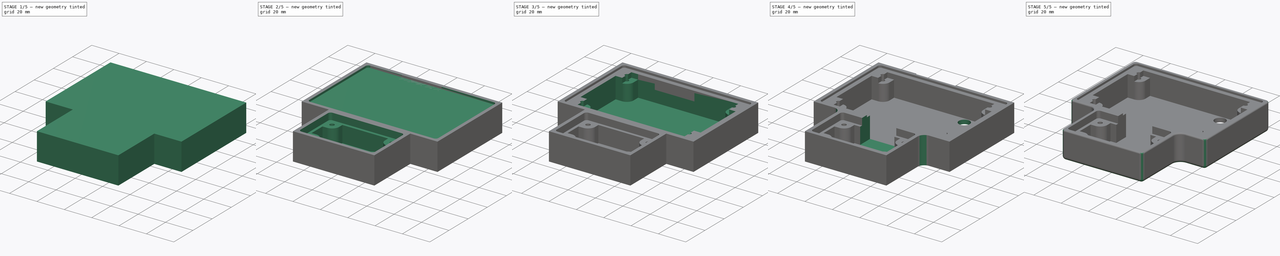
[diagram: build sequence overview — one tinted view per stage of 5, left to right]
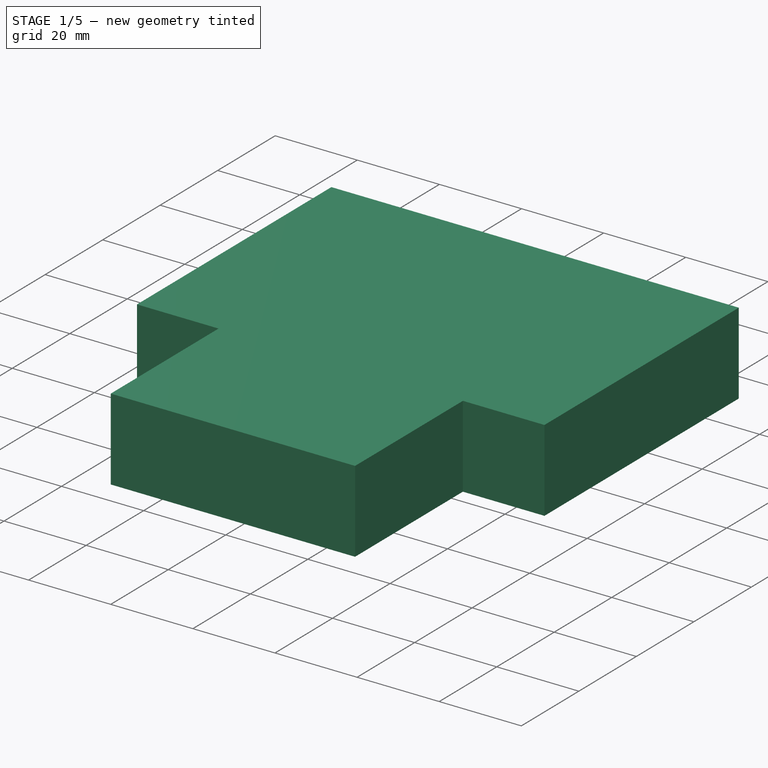
[diagram: stage 1 of 5 — iso view after this stage's code; geometry added in this stage tinted green]
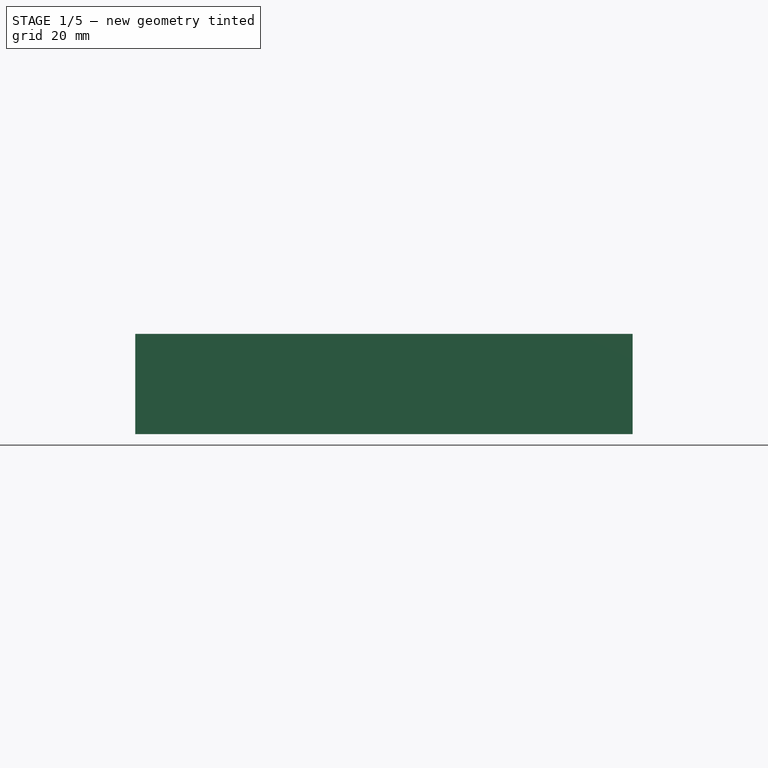
[diagram: stage 1 of 5 — front view after this stage's code; geometry added in this stage tinted green]
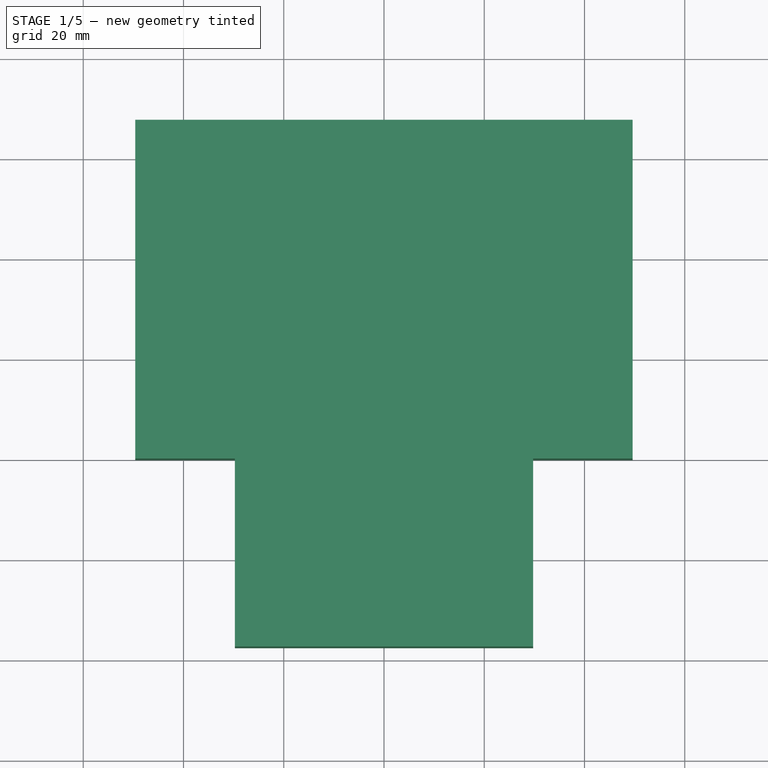
[diagram: stage 1 of 5 — top view after this stage's code; geometry added in this stage tinted green]
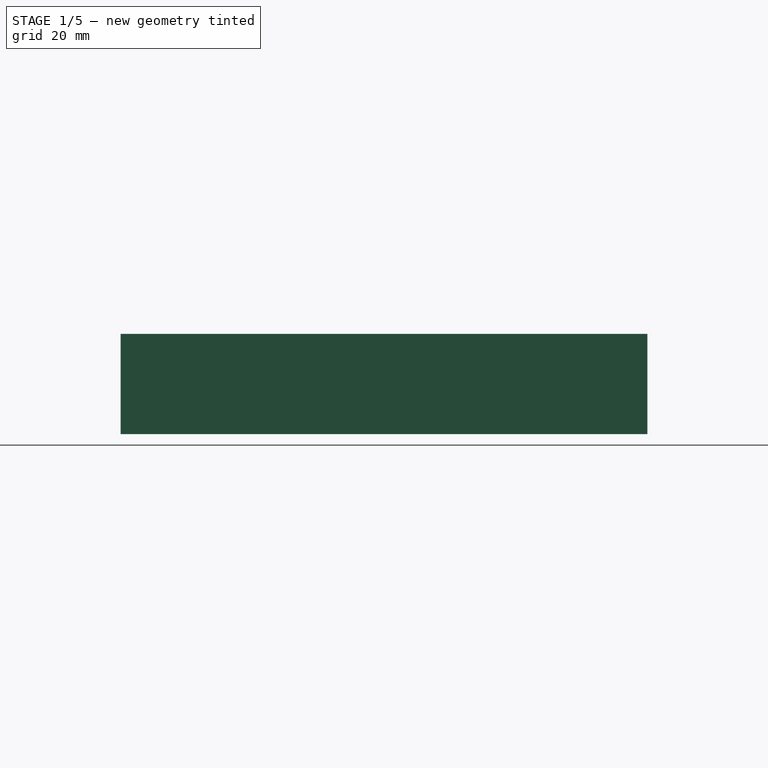
[diagram: stage 1 of 5 — right view after this stage's code; geometry added in this stage tinted green]
FCSTD DOCUMENT  (FreeCAD 1.0R39109 (Git))
Label: colorimeter_enclosure
License: All rights reserved
LicenseURL: http://en.wikipedia.org/wiki/All_rights_reserved
objects: Sketcher::SketchObject×14, PartDesign::Pocket×14, PartDesign::Plane×5, PartDesign::Fillet×4, PartDesign::Pad×2, Part::Box×2, Spreadsheet::Sheet×1, Part::Part2DObjectPython×1, PartDesign::Body×1, Part::Cut×1, Part::Fillet×1
note: 99 computed .brp shape members not serialized (recipe doc carries the construction recipe); baked Part::Feature solids carry a one-line shape summary decoded from their .brp

FEATURE [Spreadsheet::Sheet] Spreadsheet
  cells = A2='Base; A3='BaseCuvetteHolderBlockWidth; B3(BaseCuvetteHolderBlockWidth)==CuvetteHolderPocketWidth + 2 * CuvetteHolderBoundaryPadding; A4='BaseCuvetteHolderBlockLength; B4(BaseCuvetteHolderBlockLength)==CuvetteHolderPocketLength + 2 * CuvetteHolderBoundaryPadding; A5='BasePyBadgeBlockWidth; B5(BasePyBadgeBlockWidth)==PyBadgeCoverPocketWidth + 2 * PyBadgeBoundaryPadding; A6='BasePyBadgeBlockLength; B6(BasePyBadgeBlockLength)==PyBadgeCoverPocketLength + 2 * PyBadgeBoundaryPadding; A7='BaseHeight; B7(BaseHeight)==20 mm; A8='BaseFloorThickness; B8(BaseFloorThickness)==3 mm; A9='BaseRubberFootPocketDiameter; B9(BaseRubberFootPocketDiameter)==13 mm; A10='BaseRubberFootPocketDepth; B10(BaseRubberFootPocketDepth)==0.75 mm; A11='BaseCuvetteHolderRubberFootWidth; B11(BaseCuvetteHolderRubberFootWidth)==0.6 * BaseCuvetteHolderBlockWidth; A12='BaseCuvetteHolderRubberFootLength; B12(BaseCuvetteHolderRubberFootLength)==0.5 * BaseCuvetteHolderBlockLength; A13='BasePybadgeRubberFootWidth; B13(BasePybadgeRubberFootWidth)==0.62 * BasePyBadgeBlockWidth; A14='BasePyBadgeRubberFootLength; B14(BasePyBadgeRubberFootLength)==0.72 * BasePyBadgeBlockLength; A15='BaseInsideEdgeFilletRadius; B15(BaseInsideEdgeFilletRadius)==5 mm; A16='BaseOutsideEdgeFilletRadius; B16(BaseOutsideEdgeFilletRadius)==2.5 mm; A17='BaseTopEdgeFilletRadius; B17(BaseTopEdgeFilletRadius)==1 mm; A19='Cuvette Holder; A20='CuvetteHolderFlangeWidth; B20(CuvetteHolderFlangeWidth)==54 mm; A21='CuvetteHolderFlangeLength; B21(CuvetteHolderFlangeLength)==32 mm; A22='CuvetteHolderFlangeThickness; B22(CuvetteHolderFlangeThickness)==5 mm; A23='CuvetteHolderFlangeFilletRadius; B23(CuvetteHolderFlangeFilletRadius)==2 mm; A24='CuvetteHolderPocketWidth; B24(CuvetteHolderPocketWidth)==CuvetteHolderFlangeWidth + 2 * CuvetteHolderPocketMargin; A25='CuvetteHolderPocketLength; B25(CuvetteHolderPocketLength)==CuvetteHolderFlangeLength + 2 * CuvetteHolderPocketMargin; A26='CuvetteHolderPocketDepth; B26(CuvetteHolderPocketDepth)==CuvetteHolderFlangeThickness; A27='CuvetteHolderPocketFilletRadius; B27(CuvetteHolderPocketFilletRadius)==CuvetteHolderFlangeFilletRadius; A28='CuvetteHolderBoundaryPadding; B28(CuvetteHolderBoundaryPadding)==2.5 mm; A29='CuvetteHolderMountHoleWidth; B29(CuvetteHolderMountHoleWidth)==44 mm; A30='CuvetteHolderMountHoleLength; B30(CuvetteHolderMountHoleLength)==22 mm; A31='CuvetteHolderMountHoleDiameter; B31(CuvetteHolderMountHoleDiameter)==3.2 mm; C31='Through hole, M3 x 0.5 20mm  McMaster PN 95836A535; A32='CuvetteHolderHexNutShortDiagonal; B32(CuvetteHolderHexNutShortDiagonal)==5.5 mm; C32='M3, McMaster PN 98676A100; A33='CuvetteHolderHexNutLongDiagonal; B33(CuvetteHolderHexNutLongDiagonal)==2 / sqrt(3) * CuvetteHolderHexNutShortDiagonal; A34='CuvetteHolderHexNutThickness; B34(CuvetteHolderHexNutThickness)==2.4 mm; A35='CuvetteHolderHexNutPocketShortDiagonal; B35(CuvetteHolderHexNutPocketShortDiagonal)==CuvetteHolderHexNutShortDiagonal + 2 * CuvetteHolderHexNutSideMargin; A36='CuvetteHolderHexNutPocketLongDiagonal; B36(CuvetteHolderHexNutPocketLongDiagonal)==2 / sqrt(3) * CuvetteHolderHexNutPocketShortDiagonal; A37='CuvetteHolderHexNutPocketDepth; B37(CuvetteHolderHexNutPocketDepth)==CuvetteHolderHexNutThickness + CuvetteHolderHexNutDepthMargin; A38='CuvetteHolderBotttomDatumPlaneHeight; B38(CuvetteHolderBotttomDatumPlaneHeight)==BaseHeight - CuvetteHolderPocketDepth; A39='CuvetteHolderBottomPocketLipWidth; B39(CuvetteHolderBottomPocketLipWidth)==2 mm; A40='CuvetteHolderHexNutClearanceDiameter; B40(CuvetteHolderHexNutClearanceDiameter)==CuvetteHolderHexNutPocketLongDiagonal + 2 * CuvetteHolderHexNutWallMargin; A41='CuvetteHolderBottomPocketWidth; B41(CuvetteHolderBottomPocketWidth)==CuvetteHolderPocketWidth - 2 * CuvetteHolderBottomPocketLipWidth; A42='CuvetteHolderBottomPocketLength; B42(CuvetteHolderBottomPocketLength)==CuvetteHolderPocketLength - 2 * CuvetteHolderBottomPocketLipWidth; A43='CuvetteHolderBottomPocketDepth; B43(CuvetteHolderBottomPocketDepth)==BaseHeight - CuvetteHolderPocketDepth - BaseFloorThickness; A45='PyBadge; A46='PyBadgeWidth; B46(PyBadgeWidth)==85.725 mm; A47='PyBadgeLength; B47(PyBadgeLength)==54.102 mm; A48='PyBadgeCoverThickness; B48(PyBadgeCoverThickness)==3 mm; A49='PyBadgeCoverCornerFilletRadius; B49(PyBadgeCoverCornerFilletRadius)==2 mm; A50='PyBadgeBoundaryPadding; B50(PyBadgeBoundaryPadding)==2.5 mm; A51='PyBadgeCoverPocketWidth; B51(PyBadgeCoverPocketWidth)==PyBadgeWidth + 2 * (PyBadgeCoverInsideMargin + PyBadgeCoverThickness + PyBadgeCoverOutsideMargin); A52='PyBadgeCoverPocketLength; B52(PyBadgeCoverPocketLength)==PyBadgeLength + 2 * (PyBadgeCoverInsideMargin + PyBadgeCoverThickness + PyBadgeCoverOutsideMargin); A53='PyBadgePocketCoverFilletRadius; B53(PyBadgePocketCoverFilletRadius)==PyBadgeCoverCornerFilletRadius; A54='PyBadgeCoverPocketDepth; B54(PyBadgeCoverPocketDepth)==1.5 mm; A55='PyBadgePocketWidth; B55(PyBadgePocketWidth)==PyBadgeWidth + 2 * PyBadgeCoverInsideMargin; A56='PyBadgePocketLength; B56(PyBadgePocketLength)==PyBadgeLength + 2 * PyBadgeCoverInsideMargin; A57='PyBadgePocketDepth; B57(PyBadgePocketDepth)==BaseHeight - PyBadgeCoverPocketDepth - BaseFloorThickness; A58='PyBadgeMountHoleWidth; B58(PyBadgeMountHoleWidth)==78.105 mm; A59='PyBadgeMountHoleLength; B59(PyBadgeMountHoleLength)==46.355 mm; A60='PyBadgeMountHoleYOffsetFromCenter; B60(PyBadgeMountHoleYOffsetFromCenter)==0.127 mm; A61='PyBadgeMountHoleDiameter; B61(PyBadgeMountHoleDiameter)==2.75 mm; C61='Through hole, M2.5 x 0.45 20mm McMaster Carr 95836A216; A62='PyBadgeHexNutThickness; B62(PyBadgeHexNutThickness)==2 mm; A63='PyBadgeHexNutShortDiagonal; B63(PyBadgeHexNutShortDiagonal)==5 mm; C63='M2.5 McMaster Carr 98676A320; A64='PyBadgeHexNutLongDiagonal; B64(PyBadgeHexNutLongDiagonal)==2 / sqrt(3) * PyBadgeHexNutShortDiagonal; A65='PyBadgeHexNutPocketShortDiagonal; B65(PyBadgeHexNutPocketShortDiagonal)==PyBadgeHexNutShortDiagonal + 2 * PyBadgeHexNutSideMargin; A66='PyBadgeHexNutPocketLongDiagonal; B66(PyBadgeHexNutPocketLongDiagonal)==2 / sqrt(3) * PyBadgeHexNutPocketShortDiagonal; A67='PyBadgeHexNutPocketDepth; B67(PyBadgeHexNutPocketDepth)==PyBadgeHexNutThickness + PyBadgeHexNutDepthMargin; A68='PyBadgeBottomDatumPlaneHeight; B68(PyBadgeBottomDatumPlaneHeight)==BaseHeight - PyBadgeCoverPocketDepth; A69='PyBadgeMountHoleClearanceDiameter; B69(PyBadgeMountHoleClearanceDiameter)==PyBadgeHexNutLongDiagonal + 2 * PyBadgeMountHoleWallMargin; A70='PyBadgeMountHoleComponentHeight; B70(PyBadgeMountHoleComponentHeight)==2.6 mm; A71='PyBadgeComponentClearancePadDepth; B71(PyBadgeComponentClearancePadDepth)==PyBadgeMountHoleComponentHeight + PyBadgeComponentClearanceMargin; A72='PyBadgeI2CPocketWidth; B72(PyBadgeI2CPocketWidth)==25 mm; A73='PyBadgeI2CCableThickness; B73(PyBadgeI2CCableThickness)==1 mm; A74='PyBadgeI2CUpperPocketLength; B74(PyBadgeI2CUpperPocketLength)==0.5 * BasePyBadgeBlockLength; A75='PyBadgeI2CLowerPocketLength; B75(PyBadgeI2CLowerPocketLength)==0.5 * BaseCuvetteHolderBlockLength; A76='PyBadgeI2CPocketDepth; B76(PyBadgeI2CPocketDepth)==PyBadgeCoverPocketDepth + PyBadgePocketDepth; A77='PyBadgeUSBSwitchPocketLeftWidth; B77(PyBadgeUSBSwitchPocketLeftWidth)==22 mm; A78='PyBadgeUSBSwitchPocketRightWidth; B78(PyBadgeUSBSwitchPocketRightWidth)==7 mm; A79='PyBadgeUSBSwitchPocketHeight; B79(PyBadgeUSBSwitchPocketHeight)==PyBadgeUSBSwitchPocketBottomMargin + PyBadgeCoverPocketDepth; A80='PyBadgeUSBSwitchPocketFilletRadius; B80(PyBadgeUSBSwitchPocketFilletRadius)==2 mm; A81='PyBadgeUSBSwitchPocketDepth; B81(PyBadgeUSBSwitchPocketDepth)==PyBadgeBoundaryPadding + 0.5 * (BasePyBadgeBlockLength - PyBadgePocketLength) + PyBadgeUSBSwitchPocketDepthMargin; A82='PyBadgeResetXOffsetFromCenter; B82(PyBadgeResetXOffsetFromCenter)==20.38 mm; A83='PyBadgeResetYOffsetFromBoardEdge; B83(PyBadgeResetYOffsetFromBoardEdge)==3.62 mm; A84='PyBadgeResetHoleDiameter; B84(PyBadgeResetHoleDiameter)==8 mm; A86='Margins; A87='CuvetteHolderPocketMargin; B87(CuvetteHolderPocketMargin)==0.25 mm; A88='CuvetteHolderHexNutSideMargin; B88(CuvetteHolderHexNutSideMargin)==0.1 mm; A89='CuvetteHolderHexNutDepthMargin; B89(CuvetteHolderHexNutDepthMargin)==0.2 mm; A90='CuvetteHolderHexNutWallMargin; B90(CuvetteHolderHexNutWallMargin)==2 mm; A91='PyBadgeCoverInsideMargin; B91(PyBadgeCoverInsideMargin)==1 mm; A92='PyBadgeCoverOutsideMargin; B92(PyBadgeCoverOutsideMargin)==0.25 mm; A93='PyBadgeMountHoleWallMargin; B93(PyBadgeMountHoleWallMargin)==2 mm; A94='PyBadgeComponentClearanceMargin; B94(PyBadgeComponentClearanceMargin)==1 mm; A95='PyBadgeHexNutSideMargin; B95(PyBadgeHexNutSideMargin)==0.1 mm; A96='PyBadgeHexNutDepthMargin; B96(PyBadgeHexNutDepthMargin)==1.75 mm; A97='PyBadgeUSBSwitchPocketTopMargin; B97(PyBadgeUSBSwitchPocketTopMargin)==1 mm; A98='PyBadgeUSBSwitchPocketBottomMargin; B98(PyBadgeUSBSwitchPocketBottomMargin)==7 mm; A99='PyBadgeUSBSwitchPocketDepthMargin; B99(PyBadgeUSBSwitchPocketDepthMargin)==1 mm; A101='URL Label; A102='URLLabelString; B102(URLLabelString)='www.iorodeo.com; A103='URLLabelSize; B103(URLLabelSize)==3.6 mm; A104='URLLabelWidth; B104(URLLabelWidth)==80.763 mm; A105='URLLabelLength; B105(URLLabelLength)==7.419 mm; A106='URLLabelPosX; +14 more cells
FEATURE [Sketcher::SketchObject] Sketch  label="BaseSketch"
  ArcFitTolerance = 0
  AttachmentSupport = -> [XY_Plane]
  FullyConstrained = true
  MakeInternals = false
  MapMode = 5
  expr: Constraints[19] = Spreadsheet.BasePyBadgeBlockWidth
  expr: Constraints[20] = Spreadsheet.BasePyBadgeBlockLength
  expr: Constraints[21] = Spreadsheet.BaseCuvetteHolderBlockWidth
  expr: Constraints[22] = Spreadsheet.BaseCuvetteHolderBlockLength
  sketch-geometry (10):
    g0: LineSegment StartX=-49.6125 StartY=0 StartZ=0 EndX=-49.6125 EndY=67.602 EndZ=0
    g1: LineSegment StartX=-49.6125 StartY=67.602 StartZ=0 EndX=49.6125 EndY=67.602 EndZ=0
    g2: LineSegment StartX=49.6125 StartY=67.602 StartZ=0 EndX=49.6125 EndY=0 EndZ=0
    g3: LineSegment StartX=49.6125 StartY=0 StartZ=0 EndX=29.75 EndY=0 EndZ=0
    g4: LineSegment StartX=29.75 StartY=0 StartZ=0 EndX=29.75 EndY=-37.5 EndZ=0
    g5: LineSegment StartX=29.75 StartY=-37.5 StartZ=0 EndX=-29.75 EndY=-37.5 EndZ=0
    g6: LineSegment StartX=-29.75 StartY=-37.5 StartZ=0 EndX=-29.75 EndY=0 EndZ=0
    g7: LineSegment StartX=-29.75 StartY=0 StartZ=0 EndX=-49.6125 EndY=0 EndZ=0
    g8: LineSegment [constr] StartX=-29.75 StartY=0 StartZ=0 EndX=0 EndY=0 EndZ=0
    g9: LineSegment [constr] StartX=0 StartY=0 StartZ=0 EndX=29.75 EndY=0 EndZ=0
  constraints (28):
    c: Vertical(g0)
    c: Coincident(g0,g1)
    c: Horizontal(g1)
    c: Coincident(g1,g2)
    c: Vertical(g2)
    c: Coincident(g2,g3)
    c: Horizontal(g3)
    c: Coincident(g3,g4)
    c: Vertical(g4)
    c: Coincident(g4,g5)
    c: Horizontal(g5)
    c: Coincident(g5,g6)
    c: Vertical(g6)
    c: Coincident(g6,g7)
    c: Horizontal(g7)
    c: Coincident(g0,g7)
    c: Equal(g7,g3)
    c: PointOnObject(g6,g-1)
    c: PointOnObject(g3,g-1)
    c: DistanceX(g1,g1) = 99.225
    c: DistanceY(g2,g2) = 67.602
    c: DistanceX(g5,g5) = 59.5
    c: DistanceY(g4,g4) = 37.5
    c: Coincident(g8,g-1)
    c: Coincident(g8,g9)
    c: Coincident(g6,g8)
    c: Coincident(g9,g3)
    c: Equal(g8,g9)
FEATURE [PartDesign::Pad] Pad  label="BasePad"
  Direction = (0,0,1)
  Length = 20
  Length2 = 10
  Profile = -> Sketch
  ReferenceAxis = -> Sketch [N_Axis]
  Suppressed = false
  Type = 0
  expr: Length = Spreadsheet.BaseHeight
FEATURE [PartDesign::Body] Body
  AllowCompound = false
  Group = -> [Sketch,Pad,DatumPlane,Sketch001,Pocket,Sketch002,Sketch003,Pocket001,Sketch004,Pocket002,DatumPlane001,Sketch005,Pocket003,Pocket004,DatumPlane002,Sketch006,Pocket005,Sketch007,Pocket006,Sketch008,Pocket007,Sketch009,Pocket008,Sketch010,Pocket009,DatumPlane003,Sketch011,Pocket010,Sketch012,Pocket011,DatumPlane004,Sketch013,Pocket012,Fillet,Fillet001,Fillet002,ShapeString,Pocket013,Pad001,+1 more]
  Origin = -> Origin
  Tip = -> Fillet003
FEATURE [Part::Box] Box  label="Cube"
  AttacherType = Attacher::AttachEngine3D
  Height = 8.5
  Length = 29
  Placement = pos=(-22,61.85,11.5) rot=(0,0,1;0rad)
  Width = 5.74
FEATURE [Part::Box] Box001  label="Cube001"
  AttacherType = Attacher::AttachEngine3D
  Height = 3
  Length = 29
  Placement = pos=(-22,61.85,18.5) rot=(0,0,1;0rad)
  Width = 3.25
FEATURE [Part::Cut] Cut
  Base = -> Box
  Tool = -> Box001
FEATURE [Part::Fillet] Fillet004
  Base = -> Cut
  EdgeLinks = -> Cut [Edge14]
  Edges = 1 edges r=1: [Edge14]
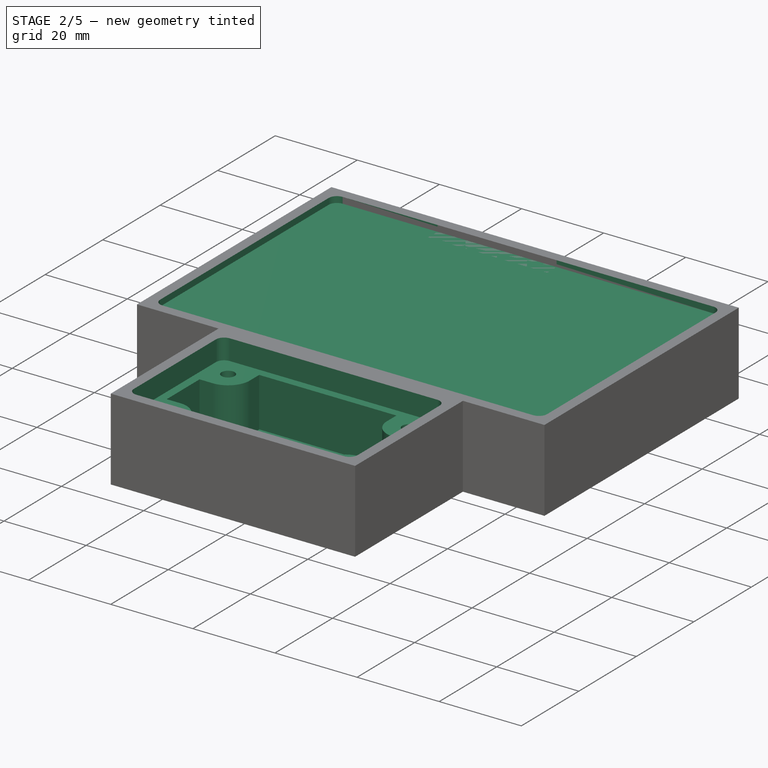
[diagram: stage 2 of 5 — iso view after this stage's code; geometry added in this stage tinted green]
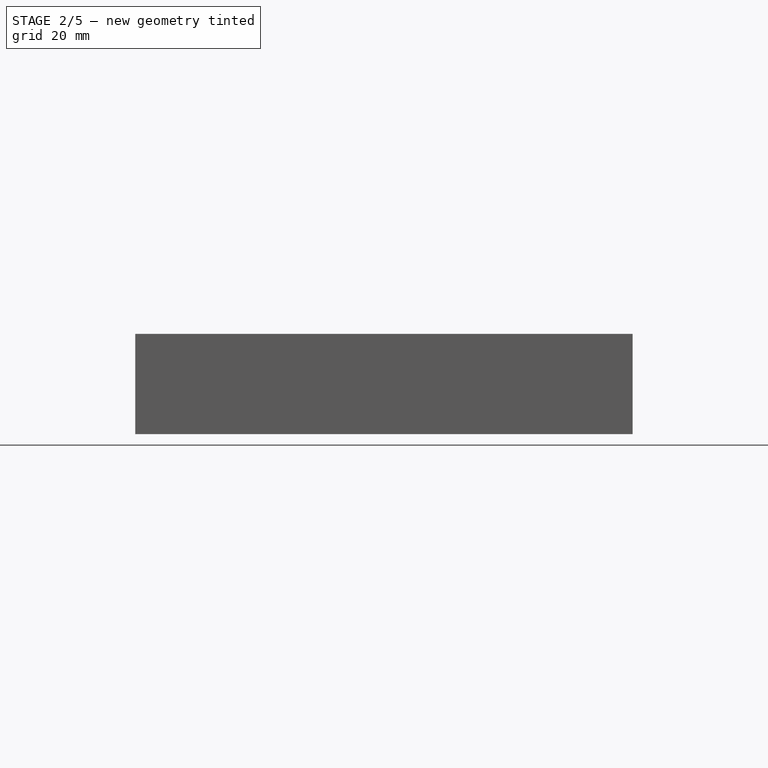
[diagram: stage 2 of 5 — front view after this stage's code; geometry added in this stage tinted green]
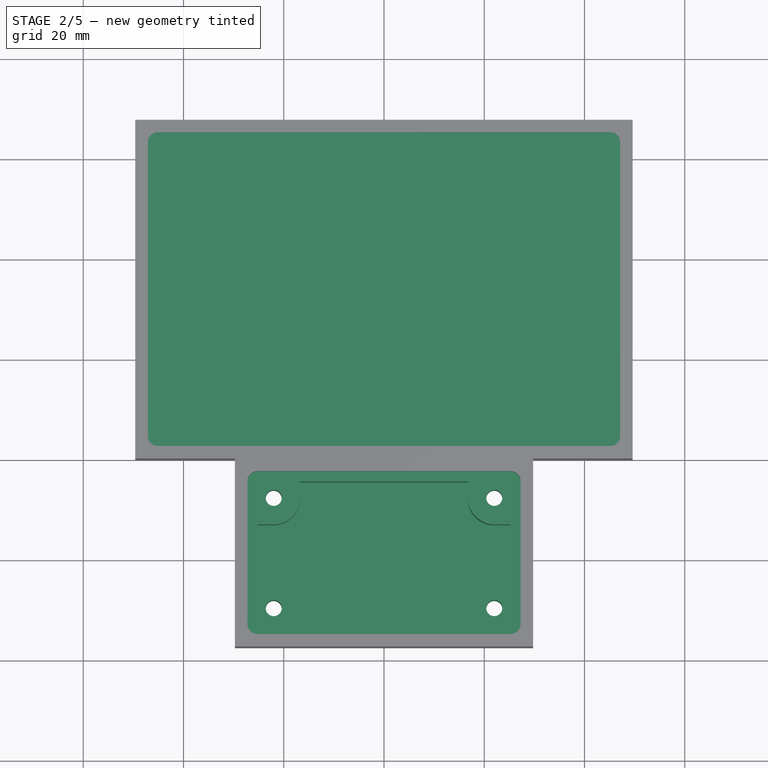
[diagram: stage 2 of 5 — top view after this stage's code; geometry added in this stage tinted green]
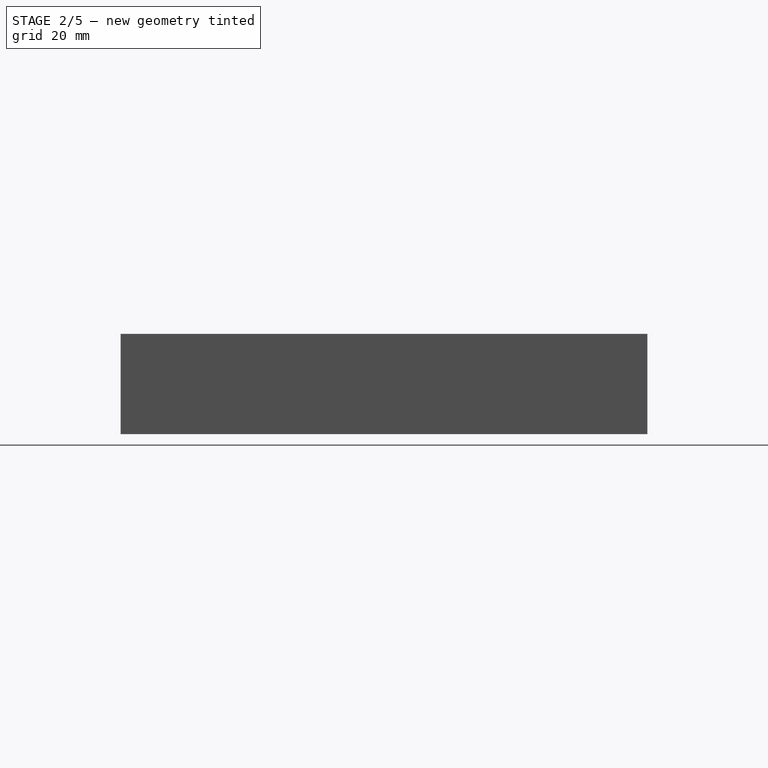
[diagram: stage 2 of 5 — right view after this stage's code; geometry added in this stage tinted green]
FEATURE [PartDesign::Plane] DatumPlane  label="BaseTopDatumPlane"
  AttachmentOffset = pos=(0,0,20) rot=(0,0,1;0rad)
  AttachmentSupport = -> [XY_Plane]
  Length = 119.649
  MapMode = 5
  Placement = pos=(0,0,20) rot=(0,0,1;0rad)
  ResizeMode = 0
  Width = 125.526
  expr: .AttachmentOffset.Base.z = Spreadsheet.BaseHeight
FEATURE [Sketcher::SketchObject] Sketch001  label="CuvetteHolderPocketSketch"
  ArcFitTolerance = 0
  AttachmentSupport = -> [DatumPlane]
  FullyConstrained = true
  MakeInternals = false
  MapMode = 5
  Placement = pos=(0,0,20) rot=(0,0,1;0rad)
  expr: Constraints[12] = Spreadsheet.BaseCuvetteHolderBlockLength
  expr: Constraints[13] = Spreadsheet.BaseCuvetteHolderBlockWidth
  expr: Constraints[39] = Spreadsheet.CuvetteHolderPocketFilletRadius
  expr: Constraints[40] = Spreadsheet.CuvetteHolderPocketWidth
  expr: Constraints[41] = Spreadsheet.CuvetteHolderPocketLength
  sketch-geometry (17):
    g0: LineSegment [constr] StartX=0 StartY=0 StartZ=0 EndX=-29.75 EndY=0 EndZ=0
    g1: LineSegment [constr] StartX=-29.75 StartY=0 StartZ=0 EndX=-29.75 EndY=-37.5 EndZ=0
    g2: LineSegment [constr] StartX=-29.75 StartY=-37.5 StartZ=0 EndX=29.75 EndY=-37.5 EndZ=0
    g3: LineSegment [constr] StartX=29.75 StartY=-37.5 StartZ=0 EndX=29.75 EndY=0 EndZ=0
    g4: LineSegment [constr] StartX=29.75 StartY=0 StartZ=0 EndX=0 EndY=0 EndZ=0
    g5: ArcOfCircle CenterX=-25.25 CenterY=-4.5 CenterZ=0 NormalX=0 NormalY=0 NormalZ=1 AngleXU=0 Radius=2 StartAngle=1.5708 EndAngle=3.14159
    g6: LineSegment StartX=-25.25 StartY=-2.5 StartZ=0 EndX=25.25 EndY=-2.5 EndZ=0
    g7: ArcOfCircle CenterX=25.25 CenterY=-4.5 CenterZ=0 NormalX=0 NormalY=0 NormalZ=1 AngleXU=0 Radius=2 StartAngle=1e-16 EndAngle=1.5708
    g8: LineSegment StartX=27.25 StartY=-4.5 StartZ=0 EndX=27.25 EndY=-33 EndZ=0
    g9: ArcOfCircle CenterX=25.25 CenterY=-33 CenterZ=0 NormalX=0 NormalY=0 NormalZ=1 AngleXU=0 Radius=2 StartAngle=4.71239 EndAngle=6.28319
    g10: LineSegment StartX=25.25 StartY=-35 StartZ=0 EndX=-25.25 EndY=-35 EndZ=0
    g11: ArcOfCircle CenterX=-25.25 CenterY=-33 CenterZ=0 NormalX=0 NormalY=0 NormalZ=1 AngleXU=0 Radius=2 StartAngle=3.14159 EndAngle=4.71239
    g12: LineSegment StartX=-27.25 StartY=-33 StartZ=0 EndX=-27.25 EndY=-4.5 EndZ=0
    g13: GeomPoint [constr] X=-27.25 Y=-2.5 Z=0
    g14: GeomPoint [constr] X=27.25 Y=-35 Z=0
    g15: LineSegment [constr] StartX=-29.75 StartY=-37.5 StartZ=0 EndX=0 EndY=-18.75 EndZ=0
    g16: LineSegment [constr] StartX=0 StartY=-18.75 StartZ=0 EndX=29.75 EndY=0 EndZ=0
  constraints (42):
    c: Horizontal(g0)
    c: Coincident(g0,g1)
    c: Vertical(g1)
    c: Coincident(g1,g2)
    c: Horizontal(g2)
    c: Coincident(g2,g3)
    c: Vertical(g3)
    c: Coincident(g3,g4)
    c: Horizontal(g4)
    c: Coincident(g0,g4)
    c: Equal(g0,g4)
    c: Coincident(g0,g-1)
    c: DistanceY(g3,g3) = 37.5
    c: DistanceX(g2,g2) = 59.5
    c: Tangent(g5,g6) = 1.5708
    c: Tangent(g6,g7) = 1.5708
    c: Tangent(g7,g8) = 1.5708
    c: Tangent(g8,g9) = 1.5708
    c: Tangent(g9,g10) = 1.5708
    c: Tangent(g10,g11) = 1.5708
    c: Tangent(g11,g12) = 1.5708
    c: Tangent(g12,g5) = 1.5708
    c: Horizontal(g6)
    c: Horizontal(g10)
    c: Vertical(g8)
    c: Vertical(g12)
    c: Equal(g5,g7)
    c: Equal(g7,g9)
    c: Equal(g9,g11)
    c: PointOnObject(g13,g6)
    c: PointOnObject(g13,g12)
    c: PointOnObject(g14,g8)
    c: PointOnObject(g14,g10)
    c: Coincident(g15,g16)
    c: Equal(g15,g16)
    c: Parallel(g15,g16)
    c: Coincident(g15,g1)
    c: Coincident(g16,g3)
    c: Symmetric(g13,g14,g15)
    c: Radius(g9) = 2
    c: DistanceX(g11,g8) = 54.5
    c: DistanceY(g10,g5) = 32.5
FEATURE [PartDesign::Pocket] Pocket  label="CuvetteHolderPocket"
  BaseFeature = -> Pad
  Direction = (0,0,-1)
  Length = 5
  Length2 = 5
  Profile = -> Sketch001
  ReferenceAxis = -> Sketch001 [N_Axis]
  Suppressed = false
  Type = 0
  expr: Length = Spreadsheet.CuvetteHolderPocketDepth
FEATURE [Sketcher::SketchObject] Sketch002  label="PyBadgeCoverPocketSketch"
  ArcFitTolerance = 0
  AttachmentSupport = -> [DatumPlane]
  FullyConstrained = true
  MakeInternals = false
  MapMode = 5
  Placement = pos=(0,0,20) rot=(0,0,1;0rad)
  expr: Constraints[12] = Spreadsheet.BasePyBadgeBlockLength
  expr: Constraints[13] = Spreadsheet.BasePyBadgeBlockWidth
  expr: Constraints[39] = Spreadsheet.PyBadgePocketCoverFilletRadius
  expr: Constraints[40] = Spreadsheet.PyBadgeCoverPocketWidth
  expr: Constraints[41] = Spreadsheet.PyBadgeCoverPocketLength
  sketch-geometry (17):
    g0: LineSegment [constr] StartX=0 StartY=0 StartZ=0 EndX=-49.6125 EndY=0 EndZ=0
    g1: LineSegment [constr] StartX=-49.6125 StartY=0 StartZ=0 EndX=-49.6125 EndY=67.602 EndZ=0
    g2: LineSegment [constr] StartX=-49.6125 StartY=67.602 StartZ=0 EndX=49.6125 EndY=67.602 EndZ=0
    g3: LineSegment [constr] StartX=49.6125 StartY=67.602 StartZ=0 EndX=49.6125 EndY=0 EndZ=0
    g4: LineSegment [constr] StartX=49.6125 StartY=0 StartZ=0 EndX=0 EndY=0 EndZ=0
    g5: ArcOfCircle CenterX=-45.1125 CenterY=63.102 CenterZ=0 NormalX=0 NormalY=0 NormalZ=1 AngleXU=0 Radius=2 StartAngle=1.5708 EndAngle=3.14159
    g6: LineSegment StartX=-45.1125 StartY=65.102 StartZ=0 EndX=45.1125 EndY=65.102 EndZ=0
    g7: ArcOfCircle CenterX=45.1125 CenterY=63.102 CenterZ=0 NormalX=0 NormalY=0 NormalZ=1 AngleXU=0 Radius=2 StartAngle=4e-16 EndAngle=1.5708
    g8: LineSegment StartX=47.1125 StartY=63.102 StartZ=0 EndX=47.1125 EndY=4.5 EndZ=0
    g9: ArcOfCircle CenterX=45.1125 CenterY=4.5 CenterZ=0 NormalX=0 NormalY=0 NormalZ=1 AngleXU=0 Radius=2 StartAngle=4.71239 EndAngle=6.28319
    g10: LineSegment StartX=45.1125 StartY=2.5 StartZ=0 EndX=-45.1125 EndY=2.5 EndZ=0
    g11: ArcOfCircle CenterX=-45.1125 CenterY=4.5 CenterZ=0 NormalX=0 NormalY=0 NormalZ=1 AngleXU=0 Radius=2 StartAngle=3.14159 EndAngle=4.71239
    g12: LineSegment StartX=-47.1125 StartY=4.5 StartZ=0 EndX=-47.1125 EndY=63.102 EndZ=0
    g13: GeomPoint [constr] X=-47.1125 Y=65.102 Z=0
    g14: GeomPoint [constr] X=47.1125 Y=2.5 Z=0
    g15: LineSegment [constr] StartX=-49.6125 StartY=0 StartZ=0 EndX=0 EndY=33.801 EndZ=0
    g16: LineSegment [constr] StartX=0 StartY=33.801 StartZ=0 EndX=49.6125 EndY=67.602 EndZ=0
  constraints (42):
    c: Horizontal(g0)
    c: Coincident(g0,g1)
    c: Vertical(g1)
    c: Coincident(g1,g2)
    c: Horizontal(g2)
    c: Coincident(g2,g3)
    c: Vertical(g3)
    c: Coincident(g3,g4)
    c: Coincident(g4,g0)
    c: Horizontal(g4)
    c: Equal(g0,g4)
    c: Coincident(g0,g-1)
    c: DistanceY(g3,g3) = 67.602
    c: DistanceX(g2,g2) = 99.225
    c: Tangent(g5,g6) = 1.5708
    c: Tangent(g6,g7) = 1.5708
    c: Tangent(g7,g8) = 1.5708
    c: Tangent(g8,g9) = 1.5708
    c: Tangent(g9,g10) = 1.5708
    c: Tangent(g10,g11) = 1.5708
    c: Tangent(g11,g12) = 1.5708
    c: Tangent(g12,g5) = 1.5708
    c: Horizontal(g6)
    c: Horizontal(g10)
    c: Vertical(g8)
    c: Vertical(g12)
    c: Equal(g5,g7)
    c: Equal(g7,g9)
    c: Equal(g9,g11)
    c: PointOnObject(g13,g6)
    c: PointOnObject(g13,g12)
    c: PointOnObject(g14,g8)
    c: PointOnObject(g14,g10)
    c: Coincident(g15,g16)
    c: Equal(g15,g16)
    c: Parallel(g15,g16)
    c: Coincident(g15,g0)
    c: Coincident(g16,g2)
    c: Symmetric(g13,g14,g15)
    c: Radius(g9) = 2
    c: DistanceX(g11,g8) = 94.225
    c: DistanceY(g10,g5) = 62.602
FEATURE [Sketcher::SketchObject] Sketch003  label="CuvetteHolderMountHoleSketch"
  ArcFitTolerance = 0
  AttachmentSupport = -> [XY_Plane]
  FullyConstrained = true
  MakeInternals = false
  MapMode = 5
  expr: Constraints[12] = Spreadsheet.BaseCuvetteHolderBlockWidth
  expr: Constraints[13] = Spreadsheet.BaseCuvetteHolderBlockLength
  expr: Constraints[28] = Spreadsheet.CuvetteHolderMountHoleLength
  expr: Constraints[29] = Spreadsheet.CuvetteHolderMountHoleWidth
  expr: Constraints[37] = Spreadsheet.CuvetteHolderMountHoleDiameter
  sketch-geometry (15):
    g0: LineSegment [constr] StartX=0 StartY=0 StartZ=0 EndX=-29.75 EndY=0 EndZ=0
    g1: LineSegment [constr] StartX=-29.75 StartY=0 StartZ=0 EndX=-29.75 EndY=-37.5 EndZ=0
    g2: LineSegment [constr] StartX=-29.75 StartY=-37.5 StartZ=0 EndX=29.75 EndY=-37.5 EndZ=0
    g3: LineSegment [constr] StartX=29.75 StartY=-37.5 StartZ=0 EndX=29.75 EndY=0 EndZ=0
    g4: LineSegment [constr] StartX=29.75 StartY=0 StartZ=0 EndX=0 EndY=0 EndZ=0
    g5: LineSegment [constr] StartX=-22 StartY=-7.75 StartZ=0 EndX=22 EndY=-7.75 EndZ=0
    g6: LineSegment [constr] StartX=22 StartY=-7.75 StartZ=0 EndX=22 EndY=-29.75 EndZ=0
    g7: LineSegment [constr] StartX=22 StartY=-29.75 StartZ=0 EndX=-22 EndY=-29.75 EndZ=0
    g8: LineSegment [constr] StartX=-22 StartY=-29.75 StartZ=0 EndX=-22 EndY=-7.75 EndZ=0
    g9: LineSegment [constr] StartX=-29.75 StartY=-37.5 StartZ=0 EndX=3.6e-15 EndY=-18.75 EndZ=0
    g10: LineSegment [constr] StartX=3.6e-15 StartY=-18.75 StartZ=0 EndX=29.75 EndY=0 EndZ=0
    g11: Circle CenterX=-22 CenterY=-7.75 CenterZ=0 NormalX=0 NormalY=0 NormalZ=1 AngleXU=0 Radius=1.6
    g12: Circle CenterX=22 CenterY=-7.75 CenterZ=0 NormalX=0 NormalY=0 NormalZ=1 AngleXU=0 Radius=1.6
    g13: Circle CenterX=-22 CenterY=-29.75 CenterZ=0 NormalX=0 NormalY=0 NormalZ=1 AngleXU=0 Radius=1.6
    g14: Circle CenterX=22 CenterY=-29.75 CenterZ=0 NormalX=0 NormalY=0 NormalZ=1 AngleXU=0 Radius=1.6
  constraints (38):
    c: Horizontal(g0)
    c: Coincident(g0,g1)
    c: Vertical(g1)
    c: Coincident(g1,g2)
    c: Horizontal(g2)
    c: Coincident(g2,g3)
    c: Vertical(g3)
    c: Coincident(g3,g4)
    c: Coincident(g4,g0)
    c: Horizontal(g4)
    c: Equal(g0,g4)
    c: Coincident(g0,g-1)
    c: DistanceX(g2,g2) = 59.5
    c: DistanceY(g3,g3) = 37.5
    c: Coincident(g5,g6)
    c: Coincident(g6,g7)
    c: Coincident(g7,g8)
    c: Coincident(g8,g5)
    c: Horizontal(g5)
    c: Horizontal(g7)
    c: Vertical(g6)
    c: Vertical(g8)
    c: Coincident(g9,g10)
    c: Equal(g9,g10)
    c: Parallel(g9,g10)
    c: Coincident(g9,g1)
    c: Coincident(g10,g3)
    c: Symmetric(g5,g6,g9)
    c: DistanceY(g6,g6) = 22
    c: DistanceX(g7,g7) = 44
    c: Equal(g11,g12)
    c: Equal(g12,g14)
    c: Equal(g14,g13)
    c: Coincident(g11,g5)
    c: Coincident(g5,g12)
    c: Coincident(g6,g14)
    c: Coincident(g13,g7)
    c: Diameter(g11) = 3.2
FEATURE [PartDesign::Pocket] Pocket001  label="CuvetteHolderMountHolePocket"
  BaseFeature = -> Pocket
  Direction = (0,0,-1)
  Length = 5
  Length2 = 5
  Profile = -> Sketch003
  ReferenceAxis = -> Sketch003 [N_Axis]
  Reversed = true
  Suppressed = false
  Type = 1
FEATURE [Sketcher::SketchObject] Sketch004  label="CuvetteHolderHexNutPocketSketch"
  ArcFitTolerance = 0
  AttachmentSupport = -> [XY_Plane]
  FullyConstrained = true
  MakeInternals = false
  MapMode = 5
  expr: Constraints[105] = Spreadsheet.CuvetteHolderHexNutPocketShortDiagonal
  expr: Constraints[12] = Spreadsheet.BaseCuvetteHolderBlockLength
  expr: Constraints[13] = Spreadsheet.BaseCuvetteHolderBlockWidth
  expr: Constraints[28] = Spreadsheet.CuvetteHolderMountHoleLength
  expr: Constraints[29] = Spreadsheet.CuvetteHolderMountHoleWidth
  sketch-geometry (39):
    g0: LineSegment [constr] StartX=0 StartY=0 StartZ=0 EndX=-29.75 EndY=0 EndZ=0
    g1: LineSegment [constr] StartX=-29.75 StartY=0 StartZ=0 EndX=-29.75 EndY=-37.5 EndZ=0
    g2: LineSegment [constr] StartX=-29.75 StartY=-37.5 StartZ=0 EndX=29.75 EndY=-37.5 EndZ=0
    g3: LineSegment [constr] StartX=29.75 StartY=-37.5 StartZ=0 EndX=29.75 EndY=0 EndZ=0
    g4: LineSegment [constr] StartX=29.75 StartY=0 StartZ=0 EndX=0 EndY=0 EndZ=0
    g5: LineSegment [constr] StartX=-29.75 StartY=-37.5 StartZ=0 EndX=0 EndY=-18.75 EndZ=0
    g6: LineSegment [constr] StartX=0 StartY=-18.75 StartZ=0 EndX=29.75 EndY=0 EndZ=0
    g7: LineSegment [constr] StartX=-22 StartY=-7.75 StartZ=0 EndX=22 EndY=-7.75 EndZ=0
    g8: LineSegment [constr] StartX=22 StartY=-7.75 StartZ=0 EndX=22 EndY=-29.75 EndZ=0
    g9: LineSegment [constr] StartX=22 StartY=-29.75 StartZ=0 EndX=-22 EndY=-29.75 EndZ=0
    g10: LineSegment [constr] StartX=-22 StartY=-29.75 StartZ=0 EndX=-22 EndY=-7.75 EndZ=0
    g11: LineSegment StartX=-20.3546 StartY=-10.6 StartZ=0 EndX=-18.7091 EndY=-7.75 EndZ=0
    g12: LineSegment StartX=-18.7091 StartY=-7.75 StartZ=0 EndX=-20.3546 EndY=-4.9 EndZ=0
    g13: LineSegment StartX=-20.3546 StartY=-4.9 StartZ=0 EndX=-23.6454 EndY=-4.9 EndZ=0
    g14: LineSegment StartX=-23.6454 StartY=-4.9 StartZ=0 EndX=-25.2909 EndY=-7.75 EndZ=0
    g15: LineSegment StartX=-25.2909 StartY=-7.75 StartZ=0 EndX=-23.6454 EndY=-10.6 EndZ=0
    g16: LineSegment StartX=-23.6454 StartY=-10.6 StartZ=0 EndX=-20.3546 EndY=-10.6 EndZ=0
    g17: Circle [constr] CenterX=-22 CenterY=-7.75 CenterZ=0 NormalX=0 NormalY=0 NormalZ=1 AngleXU=0 Radius=3.2909
    g18: LineSegment StartX=23.6454 StartY=-10.6 StartZ=0 EndX=25.2909 EndY=-7.75 EndZ=0
    g19: LineSegment StartX=25.2909 StartY=-7.75 StartZ=0 EndX=23.6454 EndY=-4.9 EndZ=0
    g20: LineSegment StartX=23.6454 StartY=-4.9 StartZ=0 EndX=20.3546 EndY=-4.9 EndZ=0
    g21: LineSegment StartX=20.3546 StartY=-4.9 StartZ=0 EndX=18.7091 EndY=-7.75 EndZ=0
    g22: LineSegment StartX=18.7091 StartY=-7.75 StartZ=0 EndX=20.3546 EndY=-10.6 EndZ=0
    g23: LineSegment StartX=20.3546 StartY=-10.6 StartZ=0 EndX=23.6454 EndY=-10.6 EndZ=0
    g24: Circle [constr] CenterX=22 CenterY=-7.75 CenterZ=0 NormalX=0 NormalY=0 NormalZ=1 AngleXU=0 Radius=3.2909
    g25: LineSegment StartX=-20.3546 StartY=-32.6 StartZ=0 EndX=-18.7091 EndY=-29.75 EndZ=0
    g26: LineSegment StartX=-18.7091 StartY=-29.75 StartZ=0 EndX=-20.3546 EndY=-26.9 EndZ=0
    g27: LineSegment StartX=-20.3546 StartY=-26.9 StartZ=0 EndX=-23.6454 EndY=-26.9 EndZ=0
    g28: LineSegment StartX=-23.6454 StartY=-26.9 StartZ=0 EndX=-25.2909 EndY=-29.75 EndZ=0
    g29: LineSegment StartX=-25.2909 StartY=-29.75 StartZ=0 EndX=-23.6454 EndY=-32.6 EndZ=0
    g30: LineSegment StartX=-23.6454 StartY=-32.6 StartZ=0 EndX=-20.3546 EndY=-32.6 EndZ=0
    g31: Circle [constr] CenterX=-22 CenterY=-29.75 CenterZ=0 NormalX=0 NormalY=0 NormalZ=1 AngleXU=0 Radius=3.2909
    g32: LineSegment StartX=23.6454 StartY=-32.6 StartZ=0 EndX=25.2909 EndY=-29.75 EndZ=0
    g33: LineSegment StartX=25.2909 StartY=-29.75 StartZ=0 EndX=23.6454 EndY=-26.9 EndZ=0
    g34: LineSegment StartX=23.6454 StartY=-26.9 StartZ=0 EndX=20.3546 EndY=-26.9 EndZ=0
    g35: LineSegment StartX=20.3546 StartY=-26.9 StartZ=0 EndX=18.7091 EndY=-29.75 EndZ=0
    g36: LineSegment StartX=18.7091 StartY=-29.75 StartZ=0 EndX=20.3546 EndY=-32.6 EndZ=0
    g37: LineSegment StartX=20.3546 StartY=-32.6 StartZ=0 EndX=23.6454 EndY=-32.6 EndZ=0
    g38: Circle [constr] CenterX=22 CenterY=-29.75 CenterZ=0 NormalX=0 NormalY=0 NormalZ=1 AngleXU=0 Radius=3.2909
  constraints (94):
    c: Horizontal(g0)
    c: Coincident(g0,g1)
    c: Vertical(g1)
    c: Coincident(g1,g2)
    c: Horizontal(g2)
    c: Coincident(g2,g3)
    c: Vertical(g3)
    c: Coincident(g3,g4)
    c: Coincident(g4,g0)
    c: Horizontal(g4)
    c: Equal(g4,g0)
    c: Coincident(g0,g-1)
    c: DistanceY(g3,g3) = 37.5
    c: DistanceX(g2,g2) = 59.5
    c: Coincident(g5,g6)
    c: Equal(g5,g6)
    c: Parallel(g5,g6)
    c: Coincident(g5,g1)
    c: Coincident(g6,g3)
    c: Coincident(g7,g8)
    c: Coincident(g8,g9)
    c: Coincident(g9,g10)
    c: Coincident(g10,g7)
    c: Horizontal(g7)
    c: Horizontal(g9)
    c: Vertical(g8)
    c: Vertical(g10)
    c: Symmetric(g7,g8,g5)
    c: DistanceY(g8,g8) = 22
    c: DistanceX(g9,g9) = 44
    c: Coincident(g11,g12)
    c: Coincident(g12,g13)
    c: Coincident(g13,g14)
    c: Coincident(g14,g15)
    c: Coincident(g15,g16)
    c: Coincident(g16,g11)
    c: Equal(g11, g12-g16) x5
    c: PointOnObject(g11,g17)
    c: PointOnObject(g12,g17)
    c: PointOnObject(g13,g17)
    c: PointOnObject(g14,g17)
    c: PointOnObject(g15,g17)
    c: PointOnObject(g16,g17)
    c: Coincident(g18,g19)
    c: Coincident(g19,g20)
    c: Coincident(g20,g21)
    c: Coincident(g21,g22)
    c: Coincident(g22,g23)
    c: Coincident(g23,g18)
    c: Equal(g18, g19-g23) x5
    c: PointOnObject(g18,g24)
    c: PointOnObject(g19,g24)
    c: PointOnObject(g20,g24)
    c: PointOnObject(g21,g24)
    c: PointOnObject(g22,g24)
    c: PointOnObject(g23,g24)
    c: Coincident(g25,g26)
    c: Coincident(g26,g27)
    c: Coincident(g27,g28)
    c: Coincident(g28,g29)
    c: Coincident(g29,g30)
    c: Coincident(g30,g25)
    c: Equal(g25, g26-g30) x5
    c: PointOnObject(g25,g31)
    c: PointOnObject(g26,g31)
    c: PointOnObject(g27,g31)
    c: PointOnObject(g28,g31)
    c: PointOnObject(g29,g31)
    c: PointOnObject(g30,g31)
    c: Coincident(g32,g33)
    c: Coincident(g33,g34)
    c: Coincident(g34,g35)
    c: Coincident(g35,g36)
    c: Coincident(g36,g37)
    c: Coincident(g37,g32)
    c: Equal(g32, g33-g37) x5
    c: PointOnObject(g32,g38)
    c: PointOnObject(g33,g38)
    c: PointOnObject(g34,g38)
    c: PointOnObject(g35,g38)
    c: PointOnObject(g36,g38)
    c: PointOnObject(g37,g38)
    c: Equal(g17,g24)
    c: Equal(g24,g38)
    c: Equal(g38,g31)
    c: Parallel(g13,g27)
    c: Parallel(g27,g20)
    c: Parallel(g20,g34)
    c: Horizontal(g13)
    c: DistanceY(g15,g13) = 5.7
    c: Coincident(g17,g7)
    c: Coincident(g31,g9)
    c: Coincident(g7,g24)
    c: Coincident(g38,g8)
FEATURE [PartDesign::Pocket] Pocket002  label="CuvetteHolderHexNutPocket"
  BaseFeature = -> Pocket001
  Direction = (0,0,-1)
  Length = 2.6
  Length2 = 5
  Profile = -> Sketch004
  ReferenceAxis = -> Sketch004 [N_Axis]
  Reversed = true
  Suppressed = false
  Type = 0
  expr: Length = Spreadsheet.CuvetteHolderHexNutPocketDepth
FEATURE [PartDesign::Plane] DatumPlane001  label="CuvetteHolderBottomDatumPlane"
  AttachmentOffset = pos=(0,0,15) rot=(0,0,1;0rad)
  AttachmentSupport = -> [XY_Plane]
  Length = 119.649
  MapMode = 5
  Placement = pos=(0,0,15) rot=(0,0,1;0rad)
  ResizeMode = 0
  Width = 125.526
  expr: .AttachmentOffset.Base.z = Spreadsheet.CuvetteHolderBotttomDatumPlaneHeight
FEATURE [Sketcher::SketchObject] Sketch005  label="CuvetteHolderBottomPocketSketch"
  ArcFitTolerance = 0
  AttachmentSupport = -> [DatumPlane001]
  FullyConstrained = true
  MakeInternals = false
  MapMode = 5
  Placement = pos=(0,0,15) rot=(0,0,1;0rad)
  expr: Constraints[12] = Spreadsheet.BaseCuvetteHolderBlockWidth
  expr: Constraints[13] = Spreadsheet.BaseCuvetteHolderBlockLength
  expr: Constraints[28] = Spreadsheet.CuvetteHolderPocketWidth
  expr: Constraints[29] = Spreadsheet.CuvetteHolderPocketLength
  expr: Constraints[39] = Spreadsheet.CuvetteHolderMountHoleWidth
  expr: Constraints[40] = Spreadsheet.CuvetteHolderMountHoleLength
  expr: Constraints[56] = Spreadsheet.CuvetteHolderHexNutClearanceDiameter
  expr: Constraints[85] = Spreadsheet.CuvetteHolderBottomPocketWidth
  expr: Constraints[88] = Spreadsheet.CuvetteHolderBottomPocketLength
  sketch-geometry (31):
    g0: LineSegment [constr] StartX=0 StartY=0 StartZ=0 EndX=-29.75 EndY=0 EndZ=0
    g1: LineSegment [constr] StartX=-29.75 StartY=0 StartZ=0 EndX=-29.75 EndY=-37.5 EndZ=0
    g2: LineSegment [constr] StartX=-29.75 StartY=-37.5 StartZ=0 EndX=29.75 EndY=-37.5 EndZ=0
    g3: LineSegment [constr] StartX=29.75 StartY=-37.5 StartZ=0 EndX=29.75 EndY=0 EndZ=0
    g4: LineSegment [constr] StartX=29.75 StartY=0 StartZ=0 EndX=0 EndY=0 EndZ=0
    g5: LineSegment [constr] StartX=-29.75 StartY=-37.5 StartZ=0 EndX=0 EndY=-18.75 EndZ=0
    g6: LineSegment [constr] StartX=0 StartY=-18.75 StartZ=0 EndX=29.75 EndY=0 EndZ=0
    g7: LineSegment [constr] StartX=-27.25 StartY=-2.5 StartZ=0 EndX=27.25 EndY=-2.5 EndZ=0
    g8: LineSegment [constr] StartX=27.25 StartY=-2.5 StartZ=0 EndX=27.25 EndY=-35 EndZ=0
    g9: LineSegment [constr] StartX=27.25 StartY=-35 StartZ=0 EndX=-27.25 EndY=-35 EndZ=0
    g10: LineSegment [constr] StartX=-27.25 StartY=-35 StartZ=0 EndX=-27.25 EndY=-2.5 EndZ=0
    g11: LineSegment [constr] StartX=-22 StartY=-7.75 StartZ=0 EndX=22 EndY=-7.75 EndZ=0
    g12: LineSegment [constr] StartX=22 StartY=-7.75 StartZ=0 EndX=22 EndY=-29.75 EndZ=0
    g13: LineSegment [constr] StartX=22 StartY=-29.75 StartZ=0 EndX=-22 EndY=-29.75 EndZ=0
    g14: LineSegment [constr] StartX=-22 StartY=-29.75 StartZ=0 EndX=-22 EndY=-7.75 EndZ=0
    g15: ArcOfCircle CenterX=-22 CenterY=-7.75 CenterZ=0 NormalX=0 NormalY=0 NormalZ=1 AngleXU=0 Radius=5.2909 StartAngle=4.71239 EndAngle=6.28319
    g16: ArcOfCircle CenterX=-22 CenterY=-29.75 CenterZ=0 NormalX=0 NormalY=0 NormalZ=1 AngleXU=0 Radius=5.2909 StartAngle=3e-16 EndAngle=1.5708
    g17: ArcOfCircle CenterX=22 CenterY=-29.75 CenterZ=0 NormalX=0 NormalY=0 NormalZ=1 AngleXU=0 Radius=5.2909 StartAngle=1.5708 EndAngle=3.14159
    g18: ArcOfCircle CenterX=22 CenterY=-7.75 CenterZ=0 NormalX=0 NormalY=0 NormalZ=1 AngleXU=0 Radius=5.2909 StartAngle=3.14159 EndAngle=4.71239
    g19: LineSegment StartX=-25.25 StartY=-13.0409 StartZ=0 EndX=-22 EndY=-13.0409 EndZ=0
    g20: LineSegment StartX=-25.25 StartY=-24.4591 StartZ=0 EndX=-22 EndY=-24.4591 EndZ=0
    g21: LineSegment StartX=-16.7091 StartY=-29.75 StartZ=0 EndX=-16.7091 EndY=-33 EndZ=0
    g22: LineSegment StartX=16.7091 StartY=-29.75 StartZ=0 EndX=16.7091 EndY=-33 EndZ=0
    g23: LineSegment StartX=22 StartY=-13.0409 StartZ=0 EndX=25.25 EndY=-13.0409 EndZ=0
    g24: LineSegment StartX=22 StartY=-24.4591 StartZ=0 EndX=25.25 EndY=-24.4591 EndZ=0
    g25: LineSegment StartX=-16.7091 StartY=-4.5 StartZ=0 EndX=-16.7091 EndY=-7.75 EndZ=0
    g26: LineSegment StartX=16.7091 StartY=-4.5 StartZ=0 EndX=16.7091 EndY=-7.75 EndZ=0
    g27: LineSegment StartX=-16.7091 StartY=-4.5 StartZ=0 EndX=16.7091 EndY=-4.5 EndZ=0
    g28: LineSegment StartX=-25.25 StartY=-13.0409 StartZ=0 EndX=-25.25 EndY=-24.4591 EndZ=0
    g29: LineSegment StartX=-16.7091 StartY=-33 StartZ=0 EndX=16.7091 EndY=-33 EndZ=0
    g30: LineSegment StartX=25.25 StartY=-13.0409 StartZ=0 EndX=25.25 EndY=-24.4591 EndZ=0
  constraints (89):
    c: Horizontal(g0)
    c: Coincident(g0,g1)
    c: Vertical(g1)
    c: Coincident(g1,g2)
    c: Horizontal(g2)
    c: Coincident(g2,g3)
    c: Vertical(g3)
    c: Coincident(g3,g4)
    c: Coincident(g4,g0)
    c: Horizontal(g4)
    c: Coincident(g0,g-1)
    c: Equal(g0,g4)
    c: DistanceX(g2,g2) = 59.5
    c: DistanceY(g3,g3) = 37.5
    c: Coincident(g5,g6)
    c: Equal(g6,g5)
    c: Parallel(g5,g6)
    c: Coincident(g5,g1)
    c: Coincident(g6,g3)
    c: Coincident(g7,g8)
    c: Coincident(g8,g9)
    c: Coincident(g9,g10)
    c: Coincident(g10,g7)
    c: Horizontal(g7)
    c: Horizontal(g9)
    c: Vertical(g8)
    c: Vertical(g10)
    c: Symmetric(g7,g8,g5)
    c: DistanceX(g9,g9) = 54.5
    c: DistanceY(g8,g8) = 32.5
    c: Coincident(g11,g12)
    c: Coincident(g12,g13)
    c: Coincident(g13,g14)
    c: Coincident(g14,g11)
    c: Horizontal(g11)
    c: Horizontal(g13)
    c: Vertical(g12)
    c: Vertical(g14)
    c: Symmetric(g11,g12,g5)
    c: DistanceX(g13,g13) = 44
    c: DistanceY(g12,g12) = 22
    c: PointOnObject(g15,g11)
    c: PointOnObject(g15,g14)
    c: Coincident(g15,g11)
    c: Coincident(g13,g16)
    c: PointOnObject(g16,g14)
    c: PointOnObject(g16,g13)
    c: Coincident(g17,g12)
    c: PointOnObject(g17,g13)
    c: PointOnObject(g17,g12)
    c: Coincident(g18,g11)
    c: PointOnObject(g18,g11)
    c: PointOnObject(g18,g12)
    c: Equal(g15,g18)
    c: Equal(g18,g17)
    c: Equal(g17,g16)
    c: Diameter(g15) = 10.5818
    c: Coincident(g19,g15)
    c: Horizontal(g19)
    c: Coincident(g20,g16)
    c: Horizontal(g20)
    c: Vertical(g21)
    c: Coincident(g21,g16)
    c: Vertical(g22)
    c: Coincident(g22,g17)
    c: Horizontal(g23)
    c: Coincident(g18,g23)
    c: Horizontal(g24)
    c: Coincident(g17,g24)
    c: Vertical(g25)
    c: Coincident(g25,g15)
    c: Vertical(g26)
    c: Coincident(g26,g18)
    c: Horizontal(g27)
    c: Coincident(g25,g27)
    c: Coincident(g27,g26)
    c: Vertical(g28)
    c: Coincident(g28,g19)
    c: Coincident(g28,g20)
    c: Horizontal(g29)
    c: Coincident(g21,g29)
    c: Coincident(g22,g29)
    c: Vertical(g30)
    c: Coincident(g23,g30)
    c: Coincident(g30,g24)
    c: DistanceX(g20,g24) = 50.5
    c: Equal(g20,g24)
    c: Equal(g25,g21)
    c: DistanceY(g22,g26) = 28.5
FEATURE [PartDesign::Pocket] Pocket003  label="CuvetteHolderBottomPocket"
  BaseFeature = -> Pocket002
  Direction = (0,0,-1)
  Length = 12
  Length2 = 5
  Profile = -> Sketch005
  ReferenceAxis = -> Sketch005 [N_Axis]
  Suppressed = false
  Type = 0
  expr: Length = Spreadsheet.CuvetteHolderBottomPocketDepth
FEATURE [PartDesign::Pocket] Pocket004  label="PyBadgeCoverPocket"
  BaseFeature = -> Pocket003
  Direction = (0,0,-1)
  Length = 1.5
  Length2 = 5
  Profile = -> Sketch002
  ReferenceAxis = -> Sketch002 [N_Axis]
  Suppressed = false
  Type = 0
  expr: Length = Spreadsheet.PyBadgeCoverPocketDepth
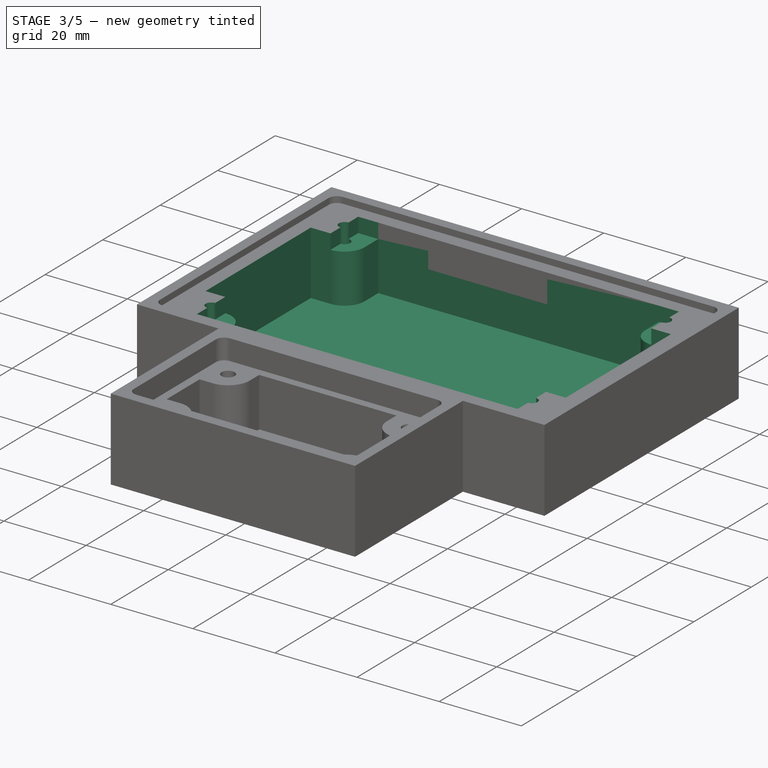
[diagram: stage 3 of 5 — iso view after this stage's code; geometry added in this stage tinted green]
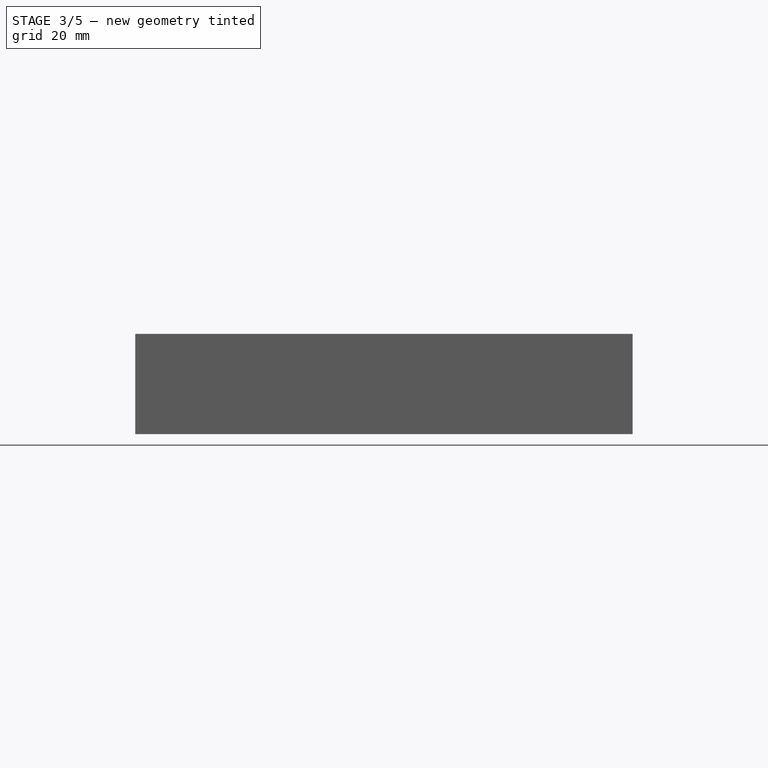
[diagram: stage 3 of 5 — front view after this stage's code; geometry added in this stage tinted green]
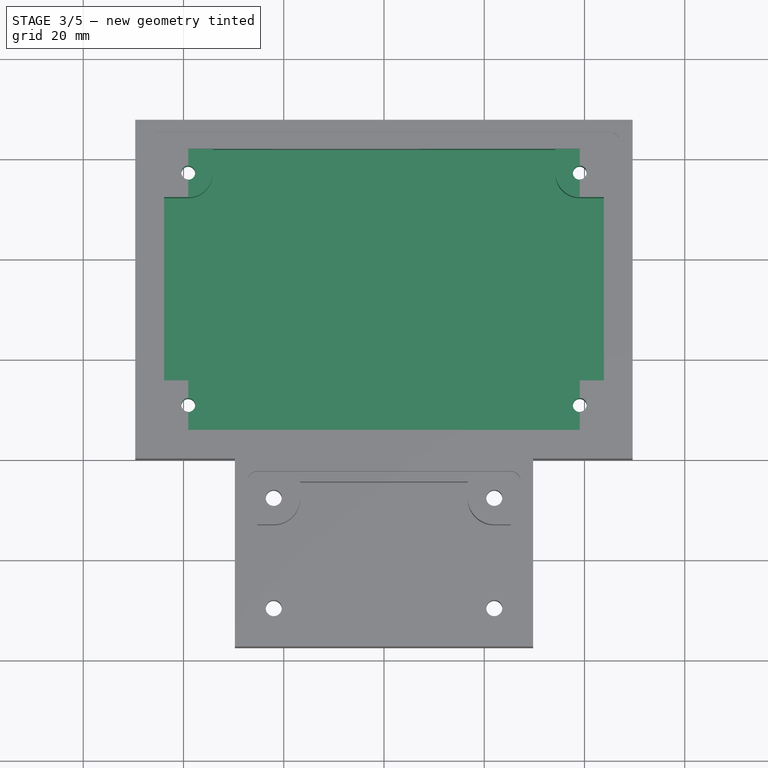
[diagram: stage 3 of 5 — top view after this stage's code; geometry added in this stage tinted green]
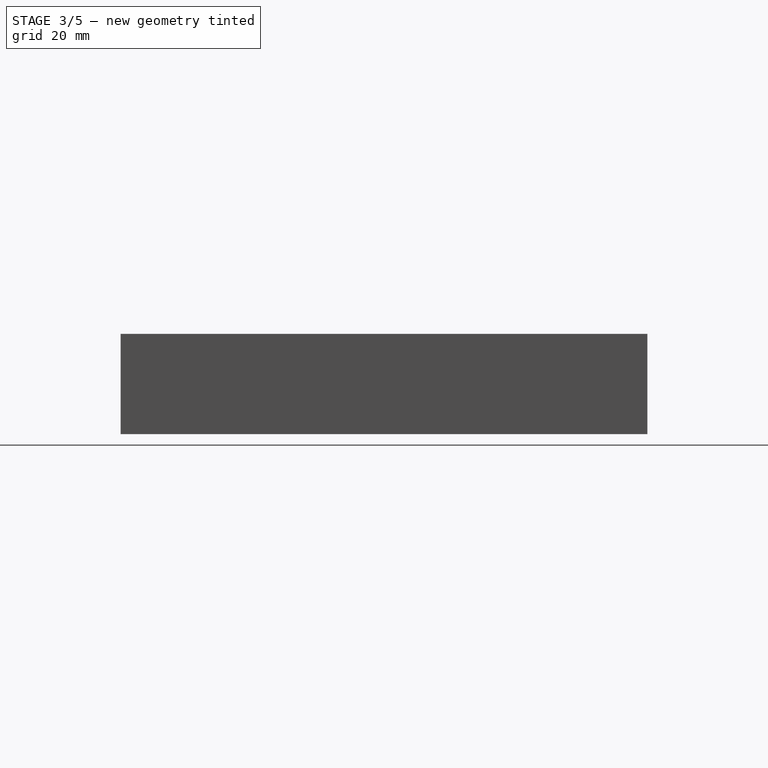
[diagram: stage 3 of 5 — right view after this stage's code; geometry added in this stage tinted green]
FEATURE [PartDesign::Plane] DatumPlane002  label="PyBadgeBottonDatumPlane"
  AttachmentOffset = pos=(0,0,18.5) rot=(0,0,1;0rad)
  AttachmentSupport = -> [XY_Plane]
  Length = 119.649
  MapMode = 5
  Placement = pos=(0,0,18.5) rot=(0,0,1;0rad)
  ResizeMode = 0
  Width = 125.526
  expr: .AttachmentOffset.Base.z = Spreadsheet.PyBadgeBottomDatumPlaneHeight
FEATURE [Sketcher::SketchObject] Sketch006  label="PyBadgeMountHoleSketch"
  ArcFitTolerance = 0
  AttachmentSupport = -> [DatumPlane002]
  FullyConstrained = true
  MakeInternals = false
  MapMode = 5
  Placement = pos=(0,0,18.5) rot=(0,0,1;0rad)
  expr: Constraints[12] = Spreadsheet.BasePyBadgeBlockWidth
  expr: Constraints[20] = Spreadsheet.PyBadgeMountHoleYOffsetFromCenter
  expr: Constraints[35] = Spreadsheet.PyBadgeMountHoleWidth
  expr: Constraints[36] = Spreadsheet.PyBadgeMountHoleLength
  expr: Constraints[37] = Spreadsheet.BasePyBadgeBlockLength
  expr: Constraints[45] = Spreadsheet.PyBadgeMountHoleDiameter
  sketch-geometry (18):
    g0: LineSegment [constr] StartX=-49.6125 StartY=67.602 StartZ=0 EndX=49.6125 EndY=67.602 EndZ=0
    g1: LineSegment [constr] StartX=49.6125 StartY=67.602 StartZ=0 EndX=49.6125 EndY=0 EndZ=0
    g2: LineSegment [constr] StartX=-49.6125 StartY=0 StartZ=0 EndX=-49.6125 EndY=67.602 EndZ=0
    g3: LineSegment [constr] StartX=-49.6125 StartY=0 StartZ=0 EndX=0 EndY=0 EndZ=0
    g4: LineSegment [constr] StartX=0 StartY=0 StartZ=0 EndX=49.6125 EndY=0 EndZ=0
    g5: LineSegment [constr] StartX=-49.6125 StartY=0 StartZ=0 EndX=0 EndY=33.801 EndZ=0
    g6: LineSegment [constr] StartX=0 StartY=33.801 StartZ=0 EndX=49.6125 EndY=67.602 EndZ=0
    g7: LineSegment [constr] StartX=0 StartY=33.928 StartZ=0 EndX=0 EndY=33.801 EndZ=0
    g8: LineSegment [constr] StartX=-39.0525 StartY=57.1055 StartZ=0 EndX=39.0525 EndY=57.1055 EndZ=0
    g9: LineSegment [constr] StartX=39.0525 StartY=57.1055 StartZ=0 EndX=39.0525 EndY=10.7505 EndZ=0
    g10: LineSegment [constr] StartX=39.0525 StartY=10.7505 StartZ=0 EndX=-39.0525 EndY=10.7505 EndZ=0
    g11: LineSegment [constr] StartX=-39.0525 StartY=10.7505 StartZ=0 EndX=-39.0525 EndY=57.1055 EndZ=0
    g12: LineSegment [constr] StartX=-39.0525 StartY=57.1055 StartZ=0 EndX=0 EndY=33.928 EndZ=0
    g13: LineSegment [constr] StartX=0 StartY=33.928 StartZ=0 EndX=39.0525 EndY=10.7505 EndZ=0
    g14: Circle CenterX=-39.0525 CenterY=57.1055 CenterZ=0 NormalX=0 NormalY=0 NormalZ=1 AngleXU=0 Radius=1.375
    g15: Circle CenterX=39.0525 CenterY=57.1055 CenterZ=0 NormalX=0 NormalY=0 NormalZ=1 AngleXU=0 Radius=1.375
    g16: Circle CenterX=-39.0525 CenterY=10.7505 CenterZ=0 NormalX=0 NormalY=0 NormalZ=1 AngleXU=0 Radius=1.375
    g17: Circle CenterX=39.0525 CenterY=10.7505 CenterZ=0 NormalX=0 NormalY=0 NormalZ=1 AngleXU=0 Radius=1.375
  constraints (46):
    c: Coincident(g0,g1)
    c: Coincident(g2,g0)
    c: Horizontal(g0)
    c: Vertical(g1)
    c: Vertical(g2)
    c: Coincident(g2,g3)
    c: Horizontal(g3)
    c: Coincident(g3,g4)
    c: Coincident(g4,g1)
    c: Horizontal(g4)
    c: Equal(g4,g3)
    c: Coincident(g3,g-1)
    c: DistanceX(g0,g0) = 99.225
    c: Coincident(g5,g6)
    c: Equal(g5,g6)
    c: Parallel(g5,g6)
    c: Coincident(g5,g2)
    c: Coincident(g6,g0)
    c: Vertical(g7)
    c: Coincident(g7,g5)
    c: DistanceY(g7,g7) = 0.127
    c: Coincident(g8,g9)
    c: Coincident(g9,g10)
    c: Coincident(g10,g11)
    c: Coincident(g11,g8)
    c: Horizontal(g8)
    c: Horizontal(g10)
    c: Vertical(g9)
    c: Vertical(g11)
    c: Coincident(g12,g13)
    c: Equal(g12,g13)
    c: Parallel(g12,g13)
    c: Coincident(g12,g7)
    c: Coincident(g12,g8)
    c: Coincident(g13,g9)
    c: DistanceX(g10,g10) = 78.105
    c: DistanceY(g9,g9) = 46.355
    c: DistanceY(g1,g1) = 67.602
    c: Equal(g14,g15)
    c: Equal(g15,g17)
    c: Equal(g17,g16)
    c: Coincident(g14,g8)
    c: Coincident(g8,g15)
    c: Coincident(g9,g17)
    c: Coincident(g16,g10)
    c: Diameter(g14) = 2.75
FEATURE [PartDesign::Pocket] Pocket005  label="PyBadgeMountHolePocket"
  BaseFeature = -> Pocket004
  Direction = (0,0,-1)
  Length = 5
  Length2 = 5
  Profile = -> Sketch006
  ReferenceAxis = -> Sketch006 [N_Axis]
  Suppressed = false
  Type = 1
FEATURE [Sketcher::SketchObject] Sketch007  label="PyBadgePocketSketch"
  ArcFitTolerance = 0
  AttachmentSupport = -> [DatumPlane002]
  FullyConstrained = true
  MakeInternals = false
  MapMode = 5
  Placement = pos=(0,0,18.5) rot=(0,0,1;0rad)
  expr: Constraints[12] = Spreadsheet.BasePyBadgeBlockLength
  expr: Constraints[13] = Spreadsheet.BasePyBadgeBlockWidth
  expr: Constraints[35] = Spreadsheet.PyBadgePocketLength
  expr: Constraints[36] = Spreadsheet.PyBadgePocketWidth
  expr: Constraints[51] = Spreadsheet.PyBadgeMountHoleWidth
  expr: Constraints[52] = Spreadsheet.PyBadgeMountHoleLength
  expr: Constraints[53] = Spreadsheet.PyBadgeMountHoleYOffsetFromCenter
  expr: Constraints[57] = Spreadsheet.PyBadgeMountHoleClearanceDiameter
  sketch-geometry (36):
    g0: LineSegment [constr] StartX=-49.6125 StartY=67.602 StartZ=0 EndX=49.6125 EndY=67.602 EndZ=0
    g1: LineSegment [constr] StartX=49.6125 StartY=67.602 StartZ=0 EndX=49.6125 EndY=0 EndZ=0
    g2: LineSegment [constr] StartX=-49.6125 StartY=0 StartZ=0 EndX=-49.6125 EndY=67.602 EndZ=0
    g3: LineSegment [constr] StartX=-49.6125 StartY=0 StartZ=0 EndX=0 EndY=0 EndZ=0
    g4: LineSegment [constr] StartX=0 StartY=0 StartZ=0 EndX=49.6125 EndY=0 EndZ=0
    g5: LineSegment [constr] StartX=-49.6125 StartY=0 StartZ=0 EndX=0 EndY=33.801 EndZ=0
    g6: LineSegment [constr] StartX=0 StartY=33.801 StartZ=0 EndX=49.6125 EndY=67.602 EndZ=0
    g7: LineSegment [constr] StartX=0 StartY=33.928 StartZ=0 EndX=0 EndY=33.801 EndZ=0
    g8: LineSegment [constr] StartX=-43.8625 StartY=61.852 StartZ=0 EndX=43.8625 EndY=61.852 EndZ=0
    g9: LineSegment [constr] StartX=43.8625 StartY=61.852 StartZ=0 EndX=43.8625 EndY=5.75 EndZ=0
    g10: LineSegment [constr] StartX=43.8625 StartY=5.75 StartZ=0 EndX=-43.8625 EndY=5.75 EndZ=0
    g11: LineSegment [constr] StartX=-43.8625 StartY=5.75 StartZ=0 EndX=-43.8625 EndY=61.852 EndZ=0
    g12: LineSegment [constr] StartX=-43.8625 StartY=61.852 StartZ=0 EndX=0 EndY=33.801 EndZ=0
    g13: LineSegment [constr] StartX=0 StartY=33.801 StartZ=0 EndX=43.8625 EndY=5.75 EndZ=0
    g14: LineSegment [constr] StartX=-39.0525 StartY=57.1055 StartZ=0 EndX=39.0525 EndY=57.1055 EndZ=0
    g15: LineSegment [constr] StartX=39.0525 StartY=57.1055 StartZ=0 EndX=39.0525 EndY=10.7505 EndZ=0
    g16: LineSegment [constr] StartX=39.0525 StartY=10.7505 StartZ=0 EndX=-39.0525 EndY=10.7505 EndZ=0
    g17: LineSegment [constr] StartX=-39.0525 StartY=10.7505 StartZ=0 EndX=-39.0525 EndY=57.1055 EndZ=0
    g18: LineSegment [constr] StartX=-39.0525 StartY=57.1055 StartZ=0 EndX=0 EndY=33.928 EndZ=0
    g19: LineSegment [constr] StartX=0 StartY=33.928 StartZ=0 EndX=39.0525 EndY=10.7505 EndZ=0
    g20: ArcOfCircle CenterX=-39.0525 CenterY=57.1055 CenterZ=0 NormalX=0 NormalY=0 NormalZ=1 AngleXU=0 Radius=4.88675 StartAngle=4.71239 EndAngle=6.28319
    g21: LineSegment StartX=-34.1657 StartY=57.1055 StartZ=0 EndX=-34.1657 EndY=61.852 EndZ=0
    g22: LineSegment StartX=-39.0525 StartY=52.2187 StartZ=0 EndX=-43.8625 EndY=52.2187 EndZ=0
    g23: ArcOfCircle CenterX=39.0525 CenterY=57.1055 CenterZ=0 NormalX=0 NormalY=0 NormalZ=1 AngleXU=0 Radius=4.88675 StartAngle=3.14159 EndAngle=4.71239
    g24: LineSegment StartX=34.1657 StartY=57.1055 StartZ=0 EndX=34.1657 EndY=61.852 EndZ=0
    g25: LineSegment StartX=39.0525 StartY=52.2187 StartZ=0 EndX=43.8625 EndY=52.2187 EndZ=0
    g26: ArcOfCircle CenterX=39.0525 CenterY=10.7505 CenterZ=0 NormalX=0 NormalY=0 NormalZ=1 AngleXU=0 Radius=4.88675 StartAngle=1.5708 EndAngle=3.14159
    g27: LineSegment StartX=39.0525 StartY=15.6373 StartZ=0 EndX=43.8625 EndY=15.6373 EndZ=0
    g28: LineSegment StartX=34.1657 StartY=10.7505 StartZ=0 EndX=34.1657 EndY=5.75 EndZ=0
    g29: ArcOfCircle CenterX=-39.0525 CenterY=10.7505 CenterZ=0 NormalX=0 NormalY=0 NormalZ=1 AngleXU=0 Radius=4.88675 StartAngle=0 EndAngle=1.5708
    g30: LineSegment StartX=-39.0525 StartY=15.6373 StartZ=0 EndX=-43.8625 EndY=15.6373 EndZ=0
    g31: LineSegment StartX=-34.1657 StartY=10.7505 StartZ=0 EndX=-34.1657 EndY=5.75 EndZ=0
    g32: LineSegment StartX=-43.8625 StartY=52.2187 StartZ=0 EndX=-43.8625 EndY=15.6373 EndZ=0
    g33: LineSegment StartX=-34.1657 StartY=61.852 StartZ=0 EndX=34.1657 EndY=61.852 EndZ=0
    g34: LineSegment StartX=43.8625 StartY=52.2187 StartZ=0 EndX=43.8625 EndY=15.6373 EndZ=0
    g35: LineSegment StartX=-34.1657 StartY=5.75 StartZ=0 EndX=34.1657 EndY=5.75 EndZ=0
  constraints (102):
    c: Coincident(g0,g1)
    c: Coincident(g2,g0)
    c: Horizontal(g0)
    c: Vertical(g1)
    c: Vertical(g2)
    c: Coincident(g3,g4)
    c: Equal(g3,g4)
    c: Horizontal(g3)
    c: Horizontal(g4)
    c: Coincident(g2,g3)
    c: Coincident(g4,g1)
    c: Coincident(g3,g-1)
    c: DistanceY(g1,g1) = 67.602
    c: DistanceX(g0,g0) = 99.225
    c: Coincident(g5,g6)
    c: Coincident(g2,g5)
    c: Coincident(g6,g0)
    c: Equal(g6,g5)
    c: Parallel(g6,g5)
    c: Vertical(g7)
    c: Coincident(g7,g5)
    c: Coincident(g8,g9)
    c: Coincident(g9,g10)
    c: Coincident(g10,g11)
    c: Coincident(g11,g8)
    c: Horizontal(g8)
    c: Horizontal(g10)
    c: Vertical(g9)
    c: Vertical(g11)
    c: Coincident(g12,g13)
    c: Equal(g12,g13)
    c: Parallel(g13,g12)
    c: Coincident(g12,g5)
    c: Coincident(g8,g12)
    c: Coincident(g13,g9)
    c: DistanceY(g9,g9) = 56.102
    c: DistanceX(g8,g8) = 87.725
    c: Coincident(g14,g15)
    c: Coincident(g15,g16)
    c: Coincident(g16,g17)
    c: Coincident(g17,g14)
    c: Horizontal(g14)
    c: Horizontal(g16)
    c: Vertical(g15)
    c: Vertical(g17)
    c: Coincident(g18,g19)
    c: Equal(g18,g19)
    c: Parallel(g18,g19)
    c: Coincident(g18,g7)
    c: Coincident(g18,g14)
    c: Coincident(g19,g15)
    c: DistanceX(g14,g14) = 78.105
    c: DistanceY(g15,g15) = 46.355
    c: DistanceY(g7,g7) = 0.127
    c: Coincident(g20,g14)
    c: PointOnObject(g20,g14)
    c: PointOnObject(g20,g17)
    c: Diameter(g20) = 9.7735
    c: Coincident(g21,g20)
    c: PointOnObject(g21,g8)
    c: Vertical(g21)
    c: Coincident(g22,g20)
    c: PointOnObject(g22,g11)
    c: Horizontal(g22)
    c: Coincident(g23,g14)
    c: PointOnObject(g23,g14)
    c: PointOnObject(g23,g15)
    c: Equal(g20,g23)
    c: Coincident(g24,g23)
    c: PointOnObject(g24,g8)
    c: Vertical(g24)
    c: Coincident(g25,g23)
    c: PointOnObject(g25,g9)
    c: Horizontal(g25)
    c: Coincident(g26,g15)
    c: PointOnObject(g26,g16)
    c: PointOnObject(g26,g15)
    c: Equal(g20,g26)
    c: Coincident(g27,g26)
    c: PointOnObject(g27,g9)
    c: Horizontal(g27)
    c: Coincident(g28,g26)
    c: PointOnObject(g28,g10)
    c: Vertical(g28)
    c: Coincident(g29,g16)
    c: PointOnObject(g29,g16)
    c: PointOnObject(g29,g17)
    c: Equal(g29,g20)
    c: Coincident(g30,g29)
    c: PointOnObject(g30,g11)
    c: Horizontal(g30)
    c: Coincident(g31,g29)
    c: PointOnObject(g31,g10)
    c: Vertical(g31)
    c: Coincident(g32,g22)
    c: Coincident(g32,g30)
    c: Coincident(g21,g33)
    c: Coincident(g33,g24)
    c: Coincident(g25,g34)
    c: Coincident(g34,g27)
    c: Coincident(g31,g35)
    c: Coincident(g35,g28)
FEATURE [PartDesign::Pocket] Pocket006  label="PyBadgePocket"
  BaseFeature = -> Pocket005
  Direction = (0,0,-1)
  Length = 15.5
  Length2 = 5
  Profile = -> Sketch007
  ReferenceAxis = -> Sketch007 [N_Axis]
  Suppressed = false
  Type = 0
  expr: Length = Spreadsheet.PyBadgePocketDepth
FEATURE [Sketcher::SketchObject] Sketch008  label="PyBadgeComponentClearanceSketch"
  ArcFitTolerance = 0
  AttachmentSupport = -> [DatumPlane002]
  FullyConstrained = true
  MakeInternals = false
  MapMode = 5
  Placement = pos=(0,0,18.5) rot=(0,0,1;0rad)
  expr: Constraints[12] = Spreadsheet.BasePyBadgeBlockWidth
  expr: Constraints[13] = Spreadsheet.BasePyBadgeBlockLength
  expr: Constraints[28] = Spreadsheet.PyBadgeMountHoleWidth
  expr: Constraints[29] = Spreadsheet.PyBadgePocketLength
  sketch-geometry (11):
    g0: LineSegment [constr] StartX=-49.6125 StartY=67.602 StartZ=0 EndX=49.6125 EndY=67.602 EndZ=0
    g1: LineSegment [constr] StartX=49.6125 StartY=67.602 StartZ=0 EndX=49.6125 EndY=0 EndZ=0
    g2: LineSegment [constr] StartX=-49.6125 StartY=0 StartZ=0 EndX=-49.6125 EndY=67.602 EndZ=0
    g3: LineSegment [constr] StartX=-49.6125 StartY=0 StartZ=0 EndX=0 EndY=0 EndZ=0
    g4: LineSegment [constr] StartX=0 StartY=0 StartZ=0 EndX=49.6125 EndY=0 EndZ=0
    g5: LineSegment [constr] StartX=-49.6125 StartY=0 StartZ=0 EndX=0 EndY=33.801 EndZ=0
    g6: LineSegment [constr] StartX=0 StartY=33.801 StartZ=0 EndX=49.6125 EndY=67.602 EndZ=0
    g7: LineSegment StartX=-39.0525 StartY=61.852 StartZ=0 EndX=39.0525 EndY=61.852 EndZ=0
    g8: LineSegment StartX=39.0525 StartY=61.852 StartZ=0 EndX=39.0525 EndY=5.75 EndZ=0
    g9: LineSegment StartX=39.0525 StartY=5.75 StartZ=0 EndX=-39.0525 EndY=5.75 EndZ=0
    g10: LineSegment StartX=-39.0525 StartY=5.75 StartZ=0 EndX=-39.0525 EndY=61.852 EndZ=0
  constraints (30):
    c: Coincident(g0,g1)
    c: Coincident(g2,g0)
    c: Horizontal(g0)
    c: Vertical(g1)
    c: Vertical(g2)
    c: Coincident(g3,g4)
    c: Coincident(g3,g2)
    c: Coincident(g4,g1)
    c: Equal(g3,g4)
    c: Parallel(g3,g4)
    c: Coincident(g-1,g3)
    c: Horizontal(g3)
    c: DistanceX(g0,g0) = 99.225
    c: DistanceY(g1,g1) = 67.602
    c: Coincident(g5,g6)
    c: Coincident(g5,g2)
    c: Coincident(g6,g0)
    c: Parallel(g5,g6)
    c: Equal(g6,g5)
    c: Coincident(g7,g8)
    c: Coincident(g8,g9)
    c: Coincident(g9,g10)
    c: Coincident(g10,g7)
    c: Horizontal(g7)
    c: Horizontal(g9)
    c: Vertical(g8)
    c: Vertical(g10)
    c: Symmetric(g7,g8,g5)
    c: DistanceX(g7,g7) = 78.105
    c: DistanceY(g8,g8) = 56.102
FEATURE [PartDesign::Pocket] Pocket007  label="PyBadgeComponentClearancePocket"
  BaseFeature = -> Pocket006
  Direction = (0,0,-1)
  Length = 3.6
  Length2 = 5
  Profile = -> Sketch008
  ReferenceAxis = -> Sketch008 [N_Axis]
  Suppressed = false
  Type = 0
  expr: Length = Spreadsheet.PyBadgeComponentClearancePadDepth
FEATURE [Sketcher::SketchObject] Sketch009  label="PyBadgeHexNutPocketSketch"
  ArcFitTolerance = 0
  AttachmentSupport = -> [XY_Plane]
  FullyConstrained = true
  MakeInternals = false
  MapMode = 5
  expr: Constraints[117] = Spreadsheet.PyBadgeHexNutPocketLongDiagonal
  expr: Constraints[12] = Spreadsheet.BasePyBadgeBlockWidth
  expr: Constraints[13] = Spreadsheet.BasePyBadgeBlockLength
  expr: Constraints[35] = Spreadsheet.PyBadgeMountHoleWidth
  expr: Constraints[36] = Spreadsheet.PyBadgeMountHoleLength
  expr: Constraints[37] = Spreadsheet.PyBadgeMountHoleYOffsetFromCenter
  sketch-geometry (42):
    g0: LineSegment [constr] StartX=-49.6125 StartY=67.602 StartZ=0 EndX=49.6125 EndY=67.602 EndZ=0
    g1: LineSegment [constr] StartX=49.6125 StartY=67.602 StartZ=0 EndX=49.6125 EndY=0 EndZ=0
    g2: LineSegment [constr] StartX=-49.6125 StartY=0 StartZ=0 EndX=-49.6125 EndY=67.602 EndZ=0
    g3: LineSegment [constr] StartX=-49.6125 StartY=0 StartZ=0 EndX=0 EndY=0 EndZ=0
    g4: LineSegment [constr] StartX=0 StartY=0 StartZ=0 EndX=49.6125 EndY=0 EndZ=0
    g5: LineSegment [constr] StartX=-49.6125 StartY=0 StartZ=0 EndX=0 EndY=33.801 EndZ=0
    g6: LineSegment [constr] StartX=0 StartY=33.801 StartZ=0 EndX=49.6125 EndY=67.602 EndZ=0
    g7: LineSegment [constr] StartX=0 StartY=33.928 StartZ=0 EndX=0 EndY=33.801 EndZ=0
    g8: LineSegment [constr] StartX=-39.0525 StartY=57.1055 StartZ=0 EndX=39.0525 EndY=57.1055 EndZ=0
    g9: LineSegment [constr] StartX=39.0525 StartY=57.1055 StartZ=0 EndX=39.0525 EndY=10.7505 EndZ=0
    g10: LineSegment [constr] StartX=39.0525 StartY=10.7505 StartZ=0 EndX=-39.0525 EndY=10.7505 EndZ=0
    g11: LineSegment [constr] StartX=-39.0525 StartY=10.7505 StartZ=0 EndX=-39.0525 EndY=57.1055 EndZ=0
    g12: LineSegment [constr] StartX=-39.0525 StartY=57.1055 StartZ=0 EndX=0 EndY=33.928 EndZ=0
    g13: LineSegment [constr] StartX=0 StartY=33.928 StartZ=0 EndX=39.0525 EndY=10.7505 EndZ=0
    g14: LineSegment StartX=-40.5536 StartY=54.5055 StartZ=0 EndX=-37.5514 EndY=54.5055 EndZ=0
    g15: LineSegment StartX=-37.5514 StartY=54.5055 StartZ=0 EndX=-36.0503 EndY=57.1055 EndZ=0
    g16: LineSegment StartX=-36.0503 StartY=57.1055 StartZ=0 EndX=-37.5514 EndY=59.7055 EndZ=0
    g17: LineSegment StartX=-37.5514 StartY=59.7055 StartZ=0 EndX=-40.5536 EndY=59.7055 EndZ=0
    g18: LineSegment StartX=-40.5536 StartY=59.7055 StartZ=0 EndX=-42.0547 EndY=57.1055 EndZ=0
    g19: LineSegment StartX=-42.0547 StartY=57.1055 StartZ=0 EndX=-40.5536 EndY=54.5055 EndZ=0
    g20: Circle [constr] CenterX=-39.0525 CenterY=57.1055 CenterZ=0 NormalX=0 NormalY=0 NormalZ=1 AngleXU=0 Radius=3.00222
    g21: LineSegment StartX=40.5536 StartY=54.5055 StartZ=0 EndX=42.0547 EndY=57.1055 EndZ=0
    g22: LineSegment StartX=42.0547 StartY=57.1055 StartZ=0 EndX=40.5536 EndY=59.7055 EndZ=0
    g23: LineSegment StartX=40.5536 StartY=59.7055 StartZ=0 EndX=37.5514 EndY=59.7055 EndZ=0
    g24: LineSegment StartX=37.5514 StartY=59.7055 StartZ=0 EndX=36.0503 EndY=57.1055 EndZ=0
    g25: LineSegment StartX=36.0503 StartY=57.1055 StartZ=0 EndX=37.5514 EndY=54.5055 EndZ=0
    g26: LineSegment StartX=37.5514 StartY=54.5055 StartZ=0 EndX=40.5536 EndY=54.5055 EndZ=0
    g27: Circle [constr] CenterX=39.0525 CenterY=57.1055 CenterZ=0 NormalX=0 NormalY=0 NormalZ=1 AngleXU=0 Radius=3.00222
    g28: LineSegment StartX=-37.5514 StartY=8.1505 StartZ=0 EndX=-36.0503 EndY=10.7505 EndZ=0
    g29: LineSegment StartX=-36.0503 StartY=10.7505 StartZ=0 EndX=-37.5514 EndY=13.3505 EndZ=0
    g30: LineSegment StartX=-37.5514 StartY=13.3505 StartZ=0 EndX=-40.5536 EndY=13.3505 EndZ=0
    g31: LineSegment StartX=-40.5536 StartY=13.3505 StartZ=0 EndX=-42.0547 EndY=10.7505 EndZ=0
    g32: LineSegment StartX=-42.0547 StartY=10.7505 StartZ=0 EndX=-40.5536 EndY=8.1505 EndZ=0
    g33: LineSegment StartX=-40.5536 StartY=8.1505 StartZ=0 EndX=-37.5514 EndY=8.1505 EndZ=0
    g34: Circle [constr] CenterX=-39.0525 CenterY=10.7505 CenterZ=0 NormalX=0 NormalY=0 NormalZ=1 AngleXU=0 Radius=3.00222
    g35: LineSegment StartX=40.5536 StartY=8.1505 StartZ=0 EndX=42.0547 EndY=10.7505 EndZ=0
    g36: LineSegment StartX=42.0547 StartY=10.7505 StartZ=0 EndX=40.5536 EndY=13.3505 EndZ=0
    g37: LineSegment StartX=40.5536 StartY=13.3505 StartZ=0 EndX=37.5514 EndY=13.3505 EndZ=0
    g38: LineSegment StartX=37.5514 StartY=13.3505 StartZ=0 EndX=36.0503 EndY=10.7505 EndZ=0
    g39: LineSegment StartX=36.0503 StartY=10.7505 StartZ=0 EndX=37.5514 EndY=8.1505 EndZ=0
    g40: LineSegment StartX=37.5514 StartY=8.1505 StartZ=0 EndX=40.5536 EndY=8.1505 EndZ=0
    g41: Circle [constr] CenterX=39.0525 CenterY=10.7505 CenterZ=0 NormalX=0 NormalY=0 NormalZ=1 AngleXU=0 Radius=3.00222
  constraints (102):
    c: Coincident(g0,g1)
    c: Coincident(g2,g0)
    c: Horizontal(g0)
    c: Vertical(g1)
    c: Vertical(g2)
    c: Coincident(g3,g4)
    c: Coincident(g2,g3)
    c: Coincident(g4,g1)
    c: Horizontal(g3)
    c: Coincident(g3,g-1)
    c: Horizontal(g4)
    c: Equal(g3,g4)
    c: DistanceX(g0,g0) = 99.225
    c: DistanceY(g1,g1) = 67.602
    c: Coincident(g5,g6)
    c: Equal(g5,g6)
    c: Parallel(g5,g6)
    c: Coincident(g5,g2)
    c: Coincident(g6,g0)
    c: Vertical(g7)
    c: Coincident(g7,g5)
    c: Coincident(g8,g9)
    c: Coincident(g9,g10)
    c: Coincident(g10,g11)
    c: Coincident(g11,g8)
    c: Horizontal(g8)
    c: Horizontal(g10)
    c: Vertical(g9)
    c: Vertical(g11)
    c: Coincident(g12,g13)
    c: Equal(g12,g13)
    c: Parallel(g12,g13)
    c: Coincident(g12,g7)
    c: Coincident(g12,g8)
    c: Coincident(g13,g9)
    c: DistanceX(g8,g8) = 78.105
    c: DistanceY(g9,g9) = 46.355
    c: DistanceY(g7,g7) = 0.127
    c: Coincident(g14,g15)
    c: Coincident(g15,g16)
    c: Coincident(g16,g17)
    c: Coincident(g17,g18)
    c: Coincident(g18,g19)
    c: Coincident(g19,g14)
    c: Equal(g14, g15-g19) x5
    c: PointOnObject(g14,g20)
    c: PointOnObject(g15,g20)
    c: PointOnObject(g16,g20)
    c: PointOnObject(g17,g20)
    c: PointOnObject(g18,g20)
    c: PointOnObject(g19,g20)
    c: Coincident(g21,g22)
    c: Coincident(g22,g23)
    c: Coincident(g23,g24)
    c: Coincident(g24,g25)
    c: Coincident(g25,g26)
    c: Coincident(g26,g21)
    c: Equal(g21, g22-g26) x5
    c: PointOnObject(g21,g27)
    c: PointOnObject(g22,g27)
    c: PointOnObject(g23,g27)
    c: PointOnObject(g24,g27)
    c: PointOnObject(g25,g27)
    c: PointOnObject(g26,g27)
    c: Coincident(g28,g29)
    c: Coincident(g29,g30)
    c: Coincident(g30,g31)
    c: Coincident(g31,g32)
    c: Coincident(g32,g33)
    c: Coincident(g33,g28)
    c: Equal(g28, g29-g33) x5
    c: PointOnObject(g28,g34)
    c: PointOnObject(g29,g34)
    c: PointOnObject(g30,g34)
    c: PointOnObject(g31,g34)
    c: PointOnObject(g32,g34)
    c: PointOnObject(g33,g34)
    c: Coincident(g35,g36)
    c: Coincident(g36,g37)
    c: Coincident(g37,g38)
    c: Coincident(g38,g39)
    c: Coincident(g39,g40)
    c: Coincident(g40,g35)
    c: Equal(g35, g36-g40) x5
    c: PointOnObject(g35,g41)
    c: PointOnObject(g36,g41)
    c: PointOnObject(g37,g41)
    c: PointOnObject(g38,g41)
    c: PointOnObject(g39,g41)
    c: PointOnObject(g40,g41)
    c: Equal(g20,g27)
    c: Equal(g27,g34)
    c: Equal(g34,g41)
    c: Coincident(g20,g8)
    c: Coincident(g27,g8)
    c: Coincident(g9,g41)
    c: Coincident(g34,g10)
    c: Horizontal(g17)
    c: Horizontal(g23)
    c: Horizontal(g37)
    c: Horizontal(g30)
    c: Diameter(g20) = 6.00444
FEATURE [PartDesign::Pocket] Pocket008  label="PyBadgeHexNutPocket"
  BaseFeature = -> Pocket007
  Direction = (0,0,-1)
  Length = 3.75
  Length2 = 5
  Profile = -> Sketch009
  ReferenceAxis = -> Sketch009 [N_Axis]
  Reversed = true
  Suppressed = false
  Type = 0
  expr: Length = Spreadsheet.PyBadgeHexNutPocketDepth
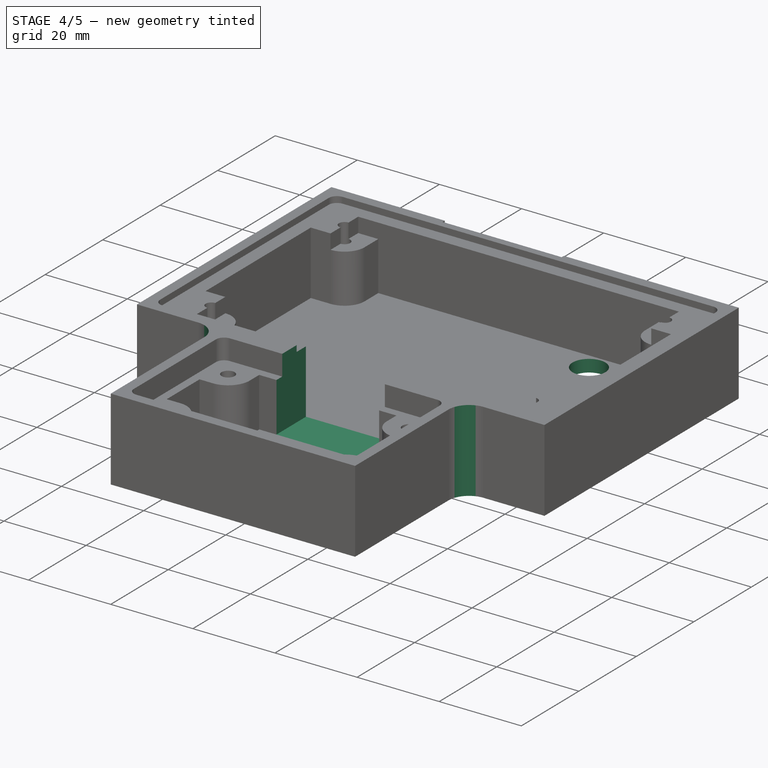
[diagram: stage 4 of 5 — iso view after this stage's code; geometry added in this stage tinted green]
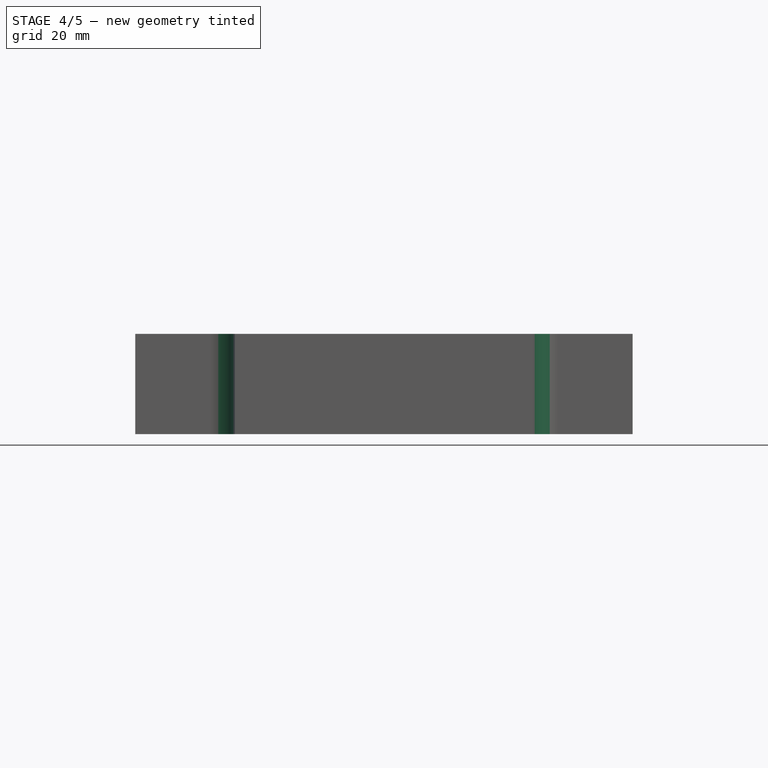
[diagram: stage 4 of 5 — front view after this stage's code; geometry added in this stage tinted green]
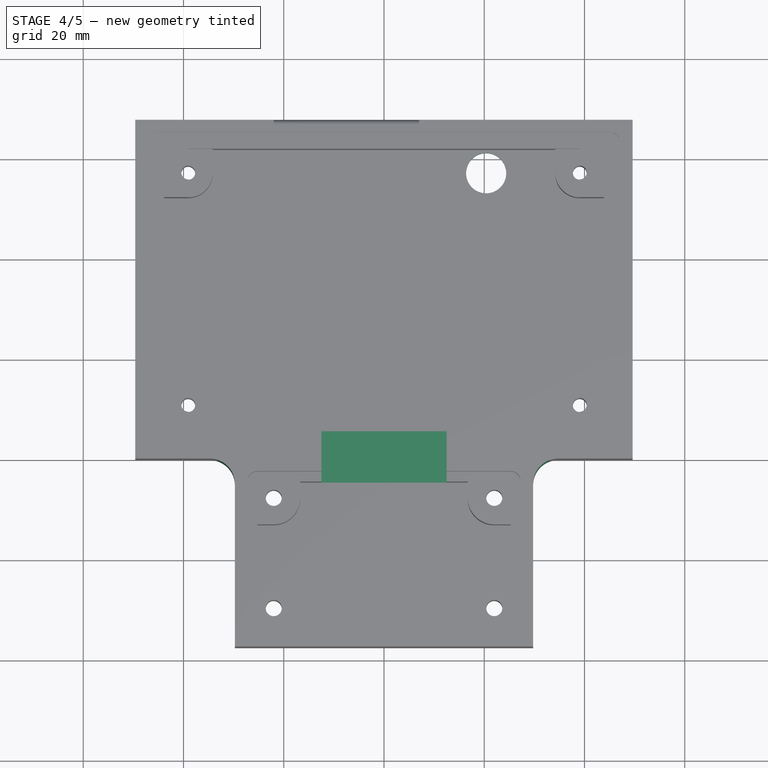
[diagram: stage 4 of 5 — top view after this stage's code; geometry added in this stage tinted green]
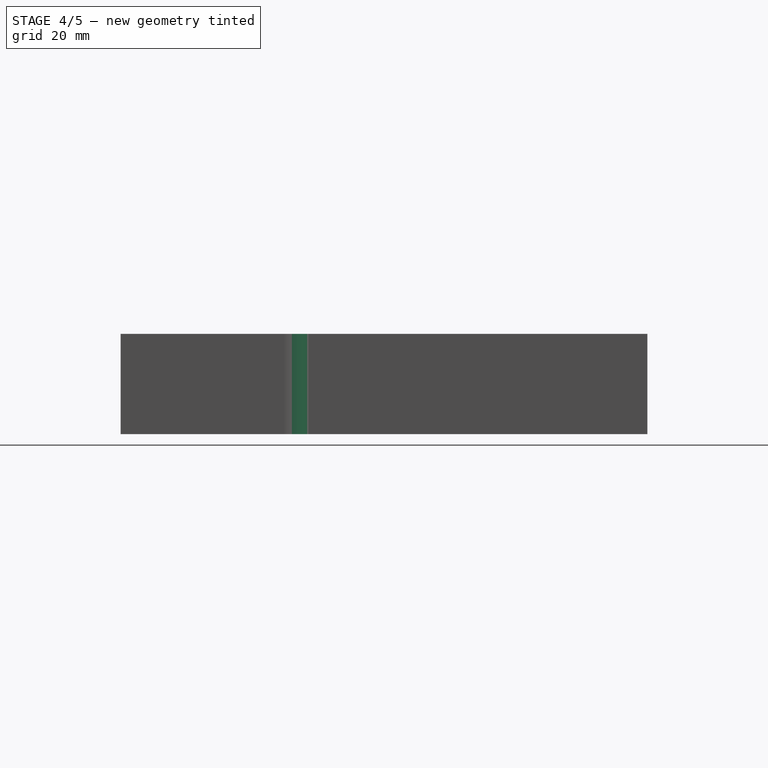
[diagram: stage 4 of 5 — right view after this stage's code; geometry added in this stage tinted green]
FEATURE [Sketcher::SketchObject] Sketch010  label="PyBadgeI2CPocketSketch"
  ArcFitTolerance = 0
  AttachmentSupport = -> [DatumPlane]
  FullyConstrained = true
  MakeInternals = false
  MapMode = 5
  Placement = pos=(0,0,20) rot=(0,0,1;0rad)
  expr: Constraints[19] = Spreadsheet.PyBadgeI2CPocketWidth
  expr: Constraints[20] = Spreadsheet.PyBadgeI2CUpperPocketLength
  expr: Constraints[21] = Spreadsheet.PyBadgeI2CLowerPocketLength
  sketch-geometry (8):
    g0: LineSegment StartX=-12.5 StartY=33.801 StartZ=0 EndX=12.5 EndY=33.801 EndZ=0
    g1: LineSegment StartX=12.5 StartY=33.801 StartZ=0 EndX=12.5 EndY=0 EndZ=0
    g2: LineSegment StartX=-12.5 StartY=2.2e-15 StartZ=0 EndX=-12.5 EndY=33.801 EndZ=0
    g3: LineSegment StartX=12.5 StartY=0 StartZ=0 EndX=12.5 EndY=-18.75 EndZ=0
    g4: LineSegment StartX=12.5 StartY=-18.75 StartZ=0 EndX=-12.5 EndY=-18.75 EndZ=0
    g5: LineSegment StartX=-12.5 StartY=-18.75 StartZ=0 EndX=-12.5 EndY=3.6e-15 EndZ=0
    g6: LineSegment [constr] StartX=-12.5 StartY=2.2e-15 StartZ=0 EndX=0 EndY=0 EndZ=0
    g7: LineSegment [constr] StartX=0 StartY=0 StartZ=0 EndX=12.5 EndY=0 EndZ=0
  constraints (22):
    c: Coincident(g0,g1)
    c: Coincident(g2,g0)
    c: Horizontal(g0)
    c: Vertical(g1)
    c: Vertical(g2)
    c: Coincident(g3,g4)
    c: Coincident(g4,g5)
    c: Horizontal(g4)
    c: Vertical(g3)
    c: Vertical(g5)
    c: Coincident(g1,g3)
    c: Coincident(g2,g5)
    c: Equal(g2,g1)
    c: PointOnObject(g1,g-1)
    c: Coincident(g6,g7)
    c: Coincident(g6,g-1)
    c: Equal(g6,g7)
    c: Coincident(g7,g1)
    c: Coincident(g2,g6)
    c: DistanceX(g0,g0) = 25
    c: DistanceY(g1,g1) = 33.801
    c: DistanceY(g3,g3) = 18.75
FEATURE [PartDesign::Pocket] Pocket009  label="PyBadgeI2CPocket"
  BaseFeature = -> Pocket008
  Direction = (0,0,-1)
  Length = 17
  Length2 = 5
  Profile = -> Sketch010
  ReferenceAxis = -> Sketch010 [N_Axis]
  Suppressed = false
  Type = 0
  expr: Length = Spreadsheet.PyBadgeI2CPocketDepth
FEATURE [PartDesign::Plane] DatumPlane003  label="PyBadgeBaseBlockRearDatumPlane"
  AttachmentOffset = pos=(0,0,67.602) rot=(0,0,1;0rad)
  AttachmentSupport = -> [XZ_Plane]
  Length = 113.312
  MapMode = 5
  Placement = pos=(0,67.602,-1.5e-14) rot=(0,0.707107,0.707107;3.14159rad)
  ResizeMode = 0
  Width = 64.0872
  expr: .AttachmentOffset.Base.z = Spreadsheet.BasePyBadgeBlockLength
FEATURE [Sketcher::SketchObject] Sketch011  label="PyBadgeUSBSwitchPocketSketch"
  ArcFitTolerance = 0
  AttachmentSupport = -> [DatumPlane003]
  FullyConstrained = true
  MakeInternals = false
  MapMode = 5
  Placement = pos=(0,67.602,-1.5e-14) rot=(0,0.707107,0.707107;3.14159rad)
  expr: Constraints[19] = Spreadsheet.PyBadgeUSBSwitchPocketTopMargin
  expr: Constraints[21] = Spreadsheet.PyBadgeUSBSwitchPocketHeight
  expr: Constraints[22] = Spreadsheet.PyBadgeUSBSwitchPocketRightWidth
  expr: Constraints[23] = Spreadsheet.PyBadgeUSBSwitchPocketLeftWidth
  expr: Constraints[2] = Spreadsheet.BaseHeight
  expr: Constraints[33] = Spreadsheet.PyBadgeUSBSwitchPocketFilletRadius
  expr: Constraints[5] = Spreadsheet.PyBadgeUSBSwitchPocketTopMargin
  sketch-geometry (13):
    g0: LineSegment [constr] StartX=0 StartY=0 StartZ=0 EndX=0 EndY=20 EndZ=0
    g1: LineSegment [constr] StartX=0 StartY=21 StartZ=0 EndX=0 EndY=20 EndZ=0
    g2: LineSegment StartX=-7 StartY=21 StartZ=0 EndX=0 EndY=21 EndZ=0
    g3: LineSegment StartX=0 StartY=21 StartZ=0 EndX=22 EndY=21 EndZ=0
    g4: LineSegment StartX=-7 StartY=21 StartZ=0 EndX=-7 EndY=20 EndZ=0
    g5: LineSegment StartX=-7 StartY=20 StartZ=0 EndX=-7 EndY=13.5 EndZ=0
    g6: LineSegment StartX=22 StartY=21 StartZ=0 EndX=22 EndY=20 EndZ=0
    g7: LineSegment StartX=22 StartY=20 StartZ=0 EndX=22 EndY=13.5 EndZ=0
    g8: LineSegment StartX=-5 StartY=11.5 StartZ=0 EndX=20 EndY=11.5 EndZ=0
    g9: ArcOfCircle CenterX=-5 CenterY=13.5 CenterZ=0 NormalX=0 NormalY=0 NormalZ=1 AngleXU=0 Radius=2 StartAngle=3.14159 EndAngle=4.71239
    g10: GeomPoint [constr] X=-7 Y=11.5 Z=0
    g11: ArcOfCircle CenterX=20 CenterY=13.5 CenterZ=0 NormalX=0 NormalY=0 NormalZ=1 AngleXU=0 Radius=2 StartAngle=4.71239 EndAngle=6.28319
    g12: GeomPoint [constr] X=22 Y=11.5 Z=0
  constraints (34):
    c: Vertical(g0)
    c: Coincident(g0,g-1)
    c: DistanceY(g0,g0) = 20
    c: Vertical(g1)
    c: Coincident(g1,g0)
    c: DistanceY(g1,g1) = 1
    c: Horizontal(g2)
    c: Coincident(g2,g3)
    c: Horizontal(g3)
    c: Coincident(g2,g1)
    c: Vertical(g4)
    c: Coincident(g4,g5)
    c: Vertical(g5)
    c: Vertical(g6)
    c: Coincident(g6,g7)
    c: Vertical(g7)
    c: Equal(g4,g6)
    c: Coincident(g4,g2)
    c: Coincident(g6,g3)
    c: DistanceY(g4,g4) = 1
    c: Horizontal(g8)
    c: DistanceY(g12,g7) = 8.5
    c: DistanceX(g2,g2) = 7
    c: DistanceX(g3,g3) = 22
    c: PointOnObject(g10,g5)
    c: PointOnObject(g10,g8)
    c: Tangent(g5,g9) = -1.5708
    c: Tangent(g8,g9) = -1.5708
    c: PointOnObject(g12,g8)
    c: PointOnObject(g12,g7)
    c: Tangent(g8,g11) = -1.5708
    c: Tangent(g7,g11) = 1.5708
    c: Equal(g9,g11)
    c: Radius(g9) = 2
FEATURE [PartDesign::Pocket] Pocket010  label="PyBadgeUSBSwitchPocket"
  BaseFeature = -> Pocket009
  Direction = (0,-1,2e-16)
  Length = 9.25
  Length2 = 5
  Profile = -> Sketch011
  ReferenceAxis = -> Sketch011 [N_Axis]
  Suppressed = false
  Type = 0
  expr: Length = Spreadsheet.PyBadgeUSBSwitchPocketDepth
FEATURE [Sketcher::SketchObject] Sketch012  label="PyBadgeResetHoleSketch"
  ArcFitTolerance = 0
  AttachmentSupport = -> [XY_Plane]
  FullyConstrained = true
  MakeInternals = false
  MapMode = 5
  expr: Constraints[12] = Spreadsheet.BasePyBadgeBlockLength
  expr: Constraints[13] = Spreadsheet.BasePyBadgeBlockWidth
  expr: Constraints[28] = Spreadsheet.PyBadgeLength
  expr: Constraints[29] = Spreadsheet.PyBadgeWidth
  expr: Constraints[33] = Spreadsheet.PyBadgeResetXOffsetFromCenter
  expr: Constraints[36] = Spreadsheet.PyBadgeResetYOffsetFromBoardEdge
  expr: Constraints[38] = Spreadsheet.PyBadgeResetHoleDiameter
  sketch-geometry (15):
    g0: LineSegment [constr] StartX=-49.6125 StartY=67.602 StartZ=0 EndX=49.6125 EndY=67.602 EndZ=0
    g1: LineSegment [constr] StartX=49.6125 StartY=67.602 StartZ=0 EndX=49.6125 EndY=0 EndZ=0
    g2: LineSegment [constr] StartX=-49.6125 StartY=-2e-16 StartZ=0 EndX=-49.6125 EndY=67.602 EndZ=0
    g3: LineSegment [constr] StartX=-49.6125 StartY=-2e-16 StartZ=0 EndX=0 EndY=0 EndZ=0
    g4: LineSegment [constr] StartX=0 StartY=0 StartZ=0 EndX=49.6125 EndY=0 EndZ=0
    g5: LineSegment [constr] StartX=-49.6125 StartY=-2e-16 StartZ=0 EndX=0 EndY=33.801 EndZ=0
    g6: LineSegment [constr] StartX=0 StartY=33.801 StartZ=0 EndX=49.6125 EndY=67.602 EndZ=0
    g7: LineSegment [constr] StartX=-42.8625 StartY=60.852 StartZ=0 EndX=42.8625 EndY=60.852 EndZ=0
    g8: LineSegment [constr] StartX=42.8625 StartY=60.852 StartZ=0 EndX=42.8625 EndY=6.75 EndZ=0
    g9: LineSegment [constr] StartX=42.8625 StartY=6.75 StartZ=0 EndX=-42.8625 EndY=6.75 EndZ=0
    g10: LineSegment [constr] StartX=-42.8625 StartY=6.75 StartZ=0 EndX=-42.8625 EndY=60.852 EndZ=0
    g11: GeomPoint [constr] X=0 Y=60.852 Z=0
    g12: GeomPoint [constr] X=20.38 Y=60.852 Z=0
    g13: LineSegment [constr] StartX=20.38 StartY=60.852 StartZ=0 EndX=20.38 EndY=57.232 EndZ=0
    g14: Circle CenterX=20.38 CenterY=57.232 CenterZ=0 NormalX=0 NormalY=0 NormalZ=1 AngleXU=0 Radius=4
  constraints (39):
    c: Coincident(g0,g1)
    c: Coincident(g2,g0)
    c: Horizontal(g0)
    c: Vertical(g1)
    c: Vertical(g2)
    c: Coincident(g3,g4)
    c: Equal(g3,g4)
    c: Parallel(g3,g4)
    c: Coincident(g3,g2)
    c: Coincident(g4,g1)
    c: Equal(g1,g2)
    c: Coincident(g-1,g3)
    c: DistanceY(g1,g1) = 67.602
    c: DistanceX(g0,g0) = 99.225
    c: Coincident(g5,g6)
    c: Equal(g5,g6)
    c: Parallel(g5,g6)
    c: Coincident(g5,g2)
    c: Coincident(g6,g0)
    c: Coincident(g7,g8)
    c: Coincident(g8,g9)
    c: Coincident(g9,g10)
    c: Coincident(g10,g7)
    c: Horizontal(g7)
    c: Horizontal(g9)
    c: Vertical(g8)
    c: Vertical(g10)
    c: Symmetric(g7,g8,g5)
    c: DistanceY(g8,g8) = 54.102
    c: DistanceX(g7,g7) = 85.725
    c: PointOnObject(g11,g-2)
    c: PointOnObject(g11,g7)
    c: PointOnObject(g12,g7)
    c: DistanceX(g11,g12) = 20.38
    c: Vertical(g13)
    c: Coincident(g13,g12)
    c: DistanceY(g13,g13) = 3.62
    c: Coincident(g14,g13)
    c: Diameter(g14) = 8
FEATURE [PartDesign::Pocket] Pocket011  label="PyBadgeResetHolePocket"
  BaseFeature = -> Pocket010
  Direction = (0,0,-1)
  Length = 5
  Length2 = 5
  Profile = -> Sketch012
  ReferenceAxis = -> Sketch012 [N_Axis]
  Reversed = true
  Suppressed = false
  Type = 1
FEATURE [PartDesign::Plane] DatumPlane004  label="FloorDatumPlane"
  AttachmentOffset = pos=(0,0,3) rot=(0,0,1;0rad)
  AttachmentSupport = -> [XY_Plane]
  Length = 119.649
  MapMode = 5
  Placement = pos=(0,0,3) rot=(0,0,1;0rad)
  ResizeMode = 0
  Width = 125.526
  expr: .AttachmentOffset.Base.z = Spreadsheet.BaseFloorThickness
FEATURE [Sketcher::SketchObject] Sketch013  label="RubberFootSketch"
  ArcFitTolerance = 0
  AttachmentSupport = -> [XY_Plane]
  FullyConstrained = true
  MakeInternals = false
  MapMode = 5
  expr: Constraints[0] = Spreadsheet.BaseRubberFootPocketDiameter
  expr: Constraints[22] = Spreadsheet.BaseCuvetteHolderRubberFootLength
  expr: Constraints[23] = Spreadsheet.BaseCuvetteHolderRubberFootWidth
  expr: Constraints[24] = Spreadsheet.BasePyBadgeRubberFootLength
  expr: Constraints[25] = Spreadsheet.BasePybadgeRubberFootWidth
  sketch-geometry (10):
    g0: Circle CenterX=-17.85 CenterY=-18.75 CenterZ=0 NormalX=0 NormalY=0 NormalZ=1 AngleXU=0 Radius=6.5
    g1: Circle CenterX=17.85 CenterY=-18.75 CenterZ=0 NormalX=0 NormalY=0 NormalZ=1 AngleXU=0 Radius=6.5
    g2: LineSegment [constr] StartX=0 StartY=0 StartZ=0 EndX=0 EndY=-18.75 EndZ=0
    g3: LineSegment [constr] StartX=-17.85 StartY=-18.75 StartZ=0 EndX=0 EndY=-18.75 EndZ=0
    g4: LineSegment [constr] StartX=0 StartY=-18.75 StartZ=0 EndX=17.85 EndY=-18.75 EndZ=0
    g5: LineSegment [constr] StartX=0 StartY=48.6734 StartZ=0 EndX=0 EndY=0 EndZ=0
    g6: LineSegment [constr] StartX=-30.7597 StartY=48.6734 StartZ=0 EndX=0 EndY=48.6734 EndZ=0
    g7: LineSegment [constr] StartX=0 StartY=48.6734 StartZ=0 EndX=30.7597 EndY=48.6734 EndZ=0
    g8: Circle CenterX=-30.7597 CenterY=48.6734 CenterZ=0 NormalX=0 NormalY=0 NormalZ=1 AngleXU=0 Radius=6.5
    g9: Circle CenterX=30.7597 CenterY=48.6734 CenterZ=0 NormalX=0 NormalY=0 NormalZ=1 AngleXU=0 Radius=6.5
  constraints (26):
    c: Diameter(g0) = 13
    c: Equal(g1,g0)
    c: Vertical(g2)
    c: Coincident(g2,g-1)
    c: Coincident(g3,g4)
    c: Equal(g4,g3)
    c: Horizontal(g4)
    c: Horizontal(g3)
    c: Coincident(g3,g2)
    c: Coincident(g1,g4)
    c: Coincident(g3,g0)
    c: Vertical(g5)
    c: Coincident(g5,g2)
    c: Horizontal(g6)
    c: Coincident(g7,g6)
    c: Horizontal(g7)
    c: Equal(g6,g7)
    c: Coincident(g6,g5)
    c: Coincident(g8,g6)
    c: Coincident(g7,g9)
    c: Equal(g8,g0)
    c: Equal(g1,g9)
    c: DistanceY(g2,g2) = 18.75
    c: DistanceX(g0,g1) = 35.7
    c: DistanceY(g5,g5) = 48.6734
    c: DistanceX(g8,g9) = 61.5195
FEATURE [PartDesign::Pocket] Pocket012  label="RubberFootPocket"
  BaseFeature = -> Pocket011
  Direction = (0,0,-1)
  Length = 0.75
  Length2 = 5
  Profile = -> Sketch013
  ReferenceAxis = -> Sketch013 [N_Axis]
  Suppressed = false
  Type = 0
  expr: Length = Spreadsheet.BaseRubberFootPocketDepth
FEATURE [PartDesign::Fillet] Fillet  label="InsideEdgeFillet"
  Base = -> Pocket012 [Edge5,Edge123]
  BaseFeature = -> Pocket012
  Radius = 5
  SupportTransform = false
  Suppressed = false
  UseAllEdges = false
  expr: Radius = Spreadsheet.BaseInsideEdgeFilletRadius
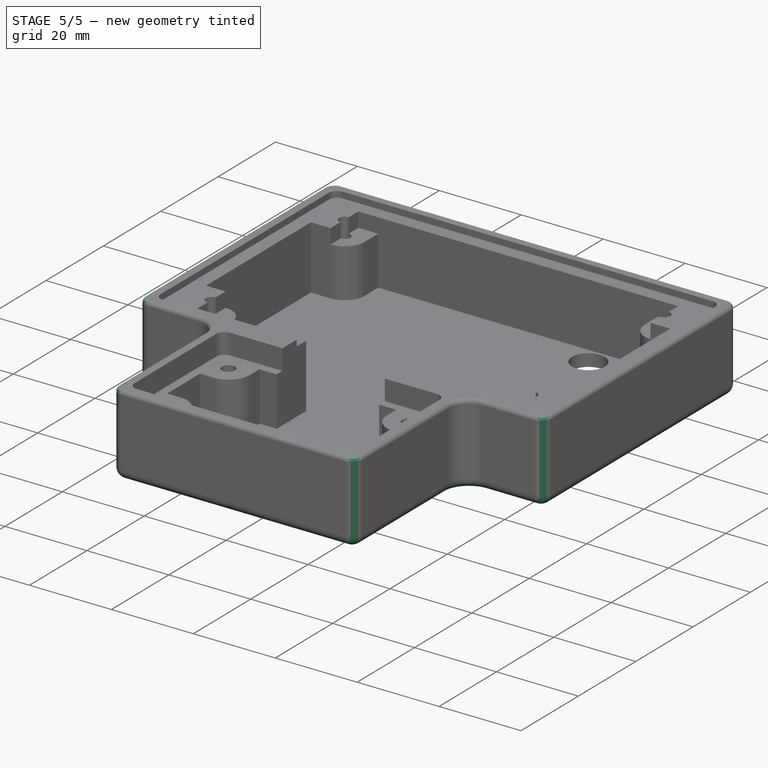
[diagram: stage 5 of 5 — iso view after this stage's code; geometry added in this stage tinted green]
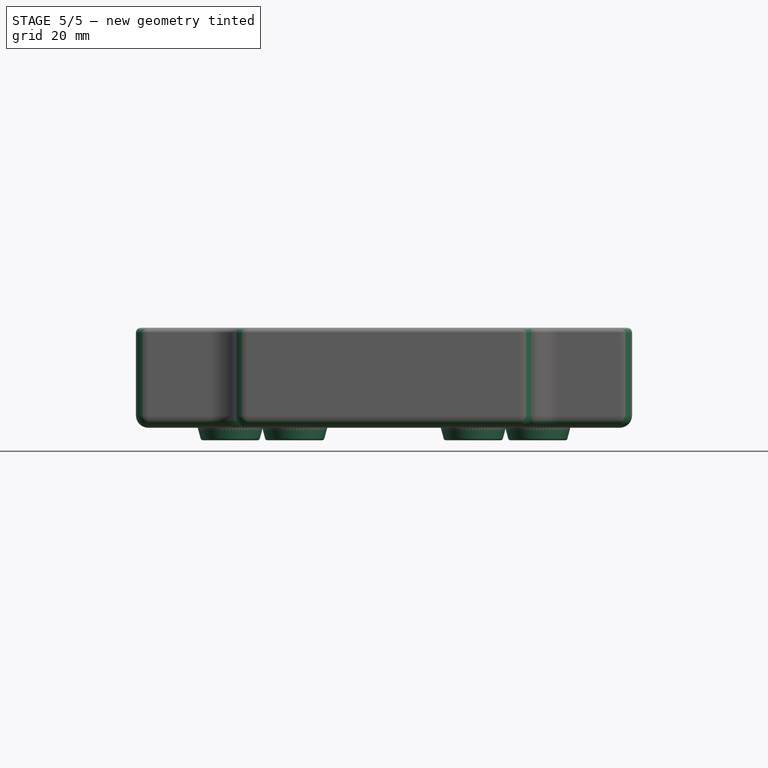
[diagram: stage 5 of 5 — front view after this stage's code; geometry added in this stage tinted green]
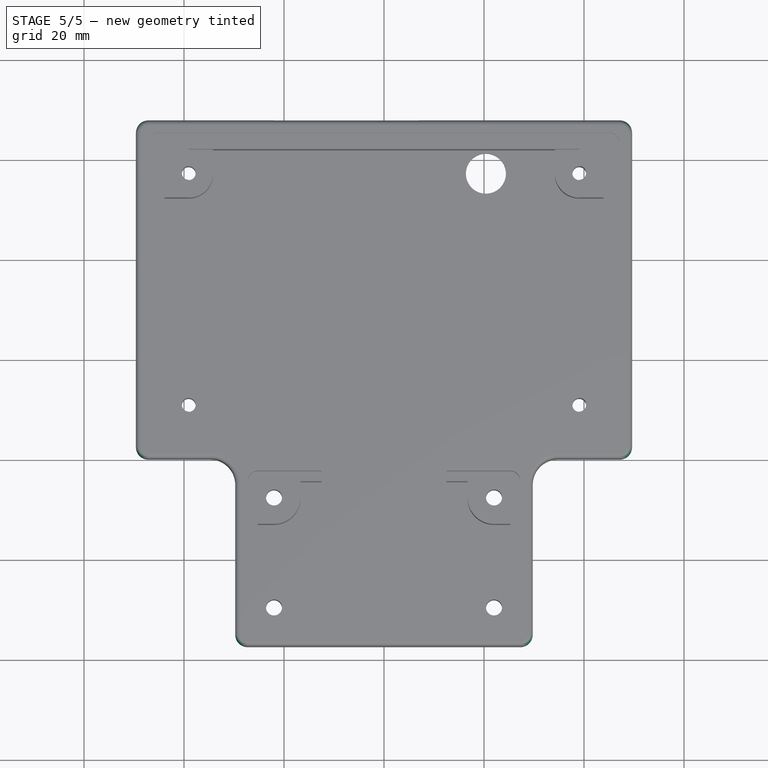
[diagram: stage 5 of 5 — top view after this stage's code; geometry added in this stage tinted green]
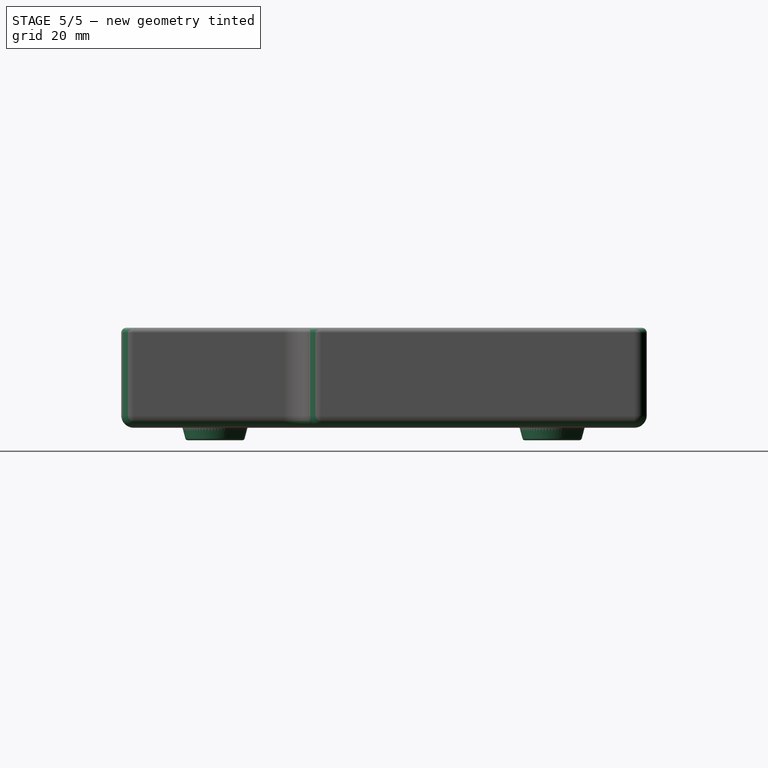
[diagram: stage 5 of 5 — right view after this stage's code; geometry added in this stage tinted green]
FEATURE [PartDesign::Fillet] Fillet001  label="OutsideEdgeFillet"
  Base = -> Fillet [Edge3,Edge104,Edge111,Edge112,Edge105,Edge69,Edge8,Edge6,Edge1,Edge5,Edge7,Edge9,Edge11,Edge13,Edge12,Edge10]
  BaseFeature = -> Fillet
  Radius = 2.5
  SupportTransform = false
  Suppressed = false
  UseAllEdges = false
  expr: Radius = Spreadsheet.BaseOutsideEdgeFilletRadius
FEATURE [PartDesign::Fillet] Fillet002  label="TopEdgeFillet"
  Base = -> Fillet001 [Edge19]
  BaseFeature = -> Fillet001
  Radius = 1
  SupportTransform = false
  Suppressed = false
  UseAllEdges = false
  expr: Radius = Spreadsheet.BaseTopEdgeFilletRadius
FEATURE [Part::Part2DObjectPython] ShapeString  label="URLLabelShapeString"  # Draft 2D object (typed FeaturePython)
  FontFile = <userpath>/work/products/open_colorimeter_enclosure/font/Ubuntu-B.ttf
  Fuse = false
  Justification = 6
  JustificationReference = 0
  KeepLeftMargin = true
  MakeFace = true
  ObliqueAngle = 0
  Placement = pos=(40.3815,26.382,0) rot=(0,1,0;3.14159rad)
  ScaleToSize = false
  Size = 3.6
  String = www.iorodeo.com
  Tracking = 0
  expr: .Placement.Base.x = Spreadsheet.URLLabelPosX
  expr: .Placement.Base.y = Spreadsheet.URLLabelPosY
  expr: .Placement.Base.z = Spreadsheet.URLLabelPosZ
  expr: Size = Spreadsheet.URLLabelSize
  expr: String = Spreadsheet.URLLabelString
FEATURE [PartDesign::Pocket] Pocket013  label="URLLabelPocket"
  BaseFeature = -> Fillet002
  Direction = (0,0,1)
  Length = 0.6
  Length2 = 5
  Profile = -> ShapeString
  ReferenceAxis = -> ShapeString [N_Axis]
  Suppressed = false
  Type = 0
  expr: Length = Spreadsheet.URLLabelPocketDepth
FEATURE [PartDesign::Pad] Pad001  label="AltFootPad"
  BaseFeature = -> Pocket013
  Direction = (0,0,1)
  Length = 2.5
  Length2 = 10
  Profile = -> Sketch013
  ReferenceAxis = -> Sketch013 [N_Axis]
  Reversed = true
  Suppressed = false
  TaperAngle = -15
  Type = 0
  expr: Length = Spreadsheet.AltFootPadHeight
  expr: TaperAngle = Spreadsheet.AltFootPadTaper
FEATURE [PartDesign::Fillet] Fillet003  label="AltFootFillet"
  Base = -> Pad001 [Edge554,Edge580,Edge1228,Edge914]
  BaseFeature = -> Pad001
  Radius = 0.5
  SupportTransform = false
  Suppressed = false
  UseAllEdges = false
  expr: Radius = Spreadsheet.AltFootFilletRadius
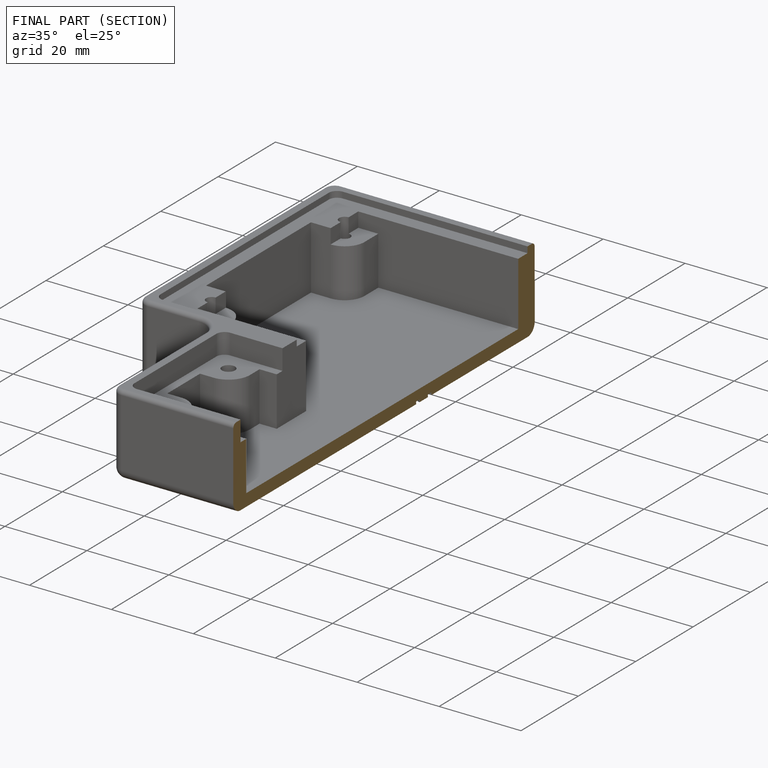
[diagram: finished part — half-section view (interior)]
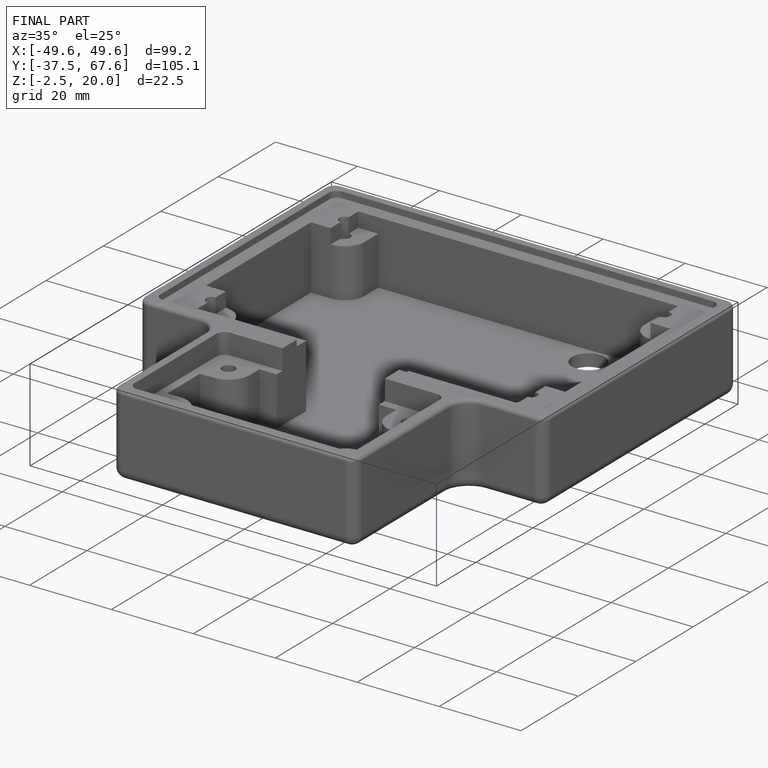
[diagram: finished part — iso view with bounding-box wireframe]
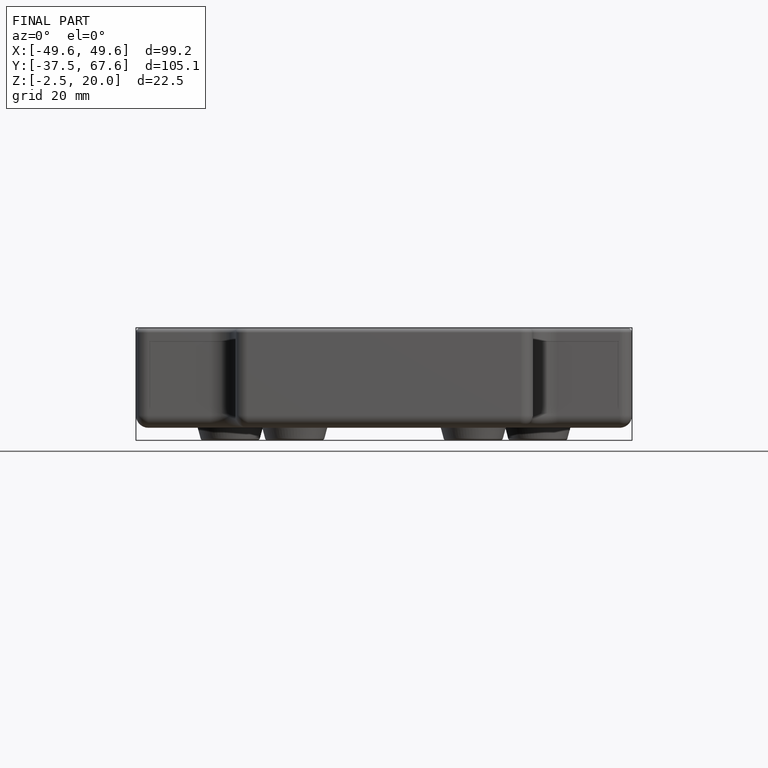
[diagram: finished part — front view with bounding-box wireframe]
